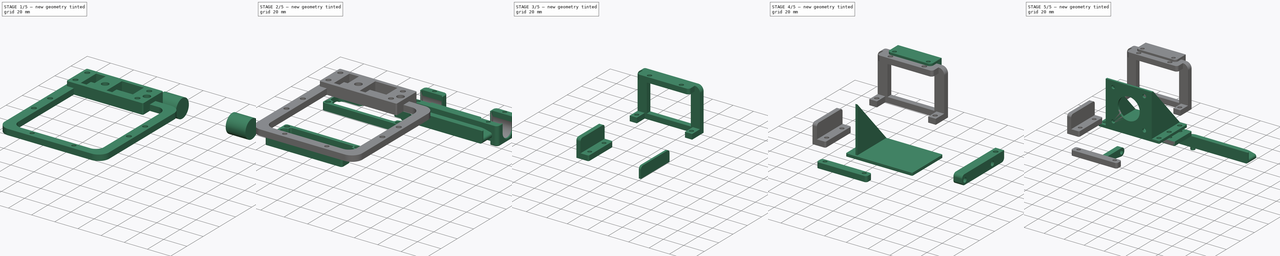
[diagram: build sequence overview — one tinted view per stage of 5, left to right]
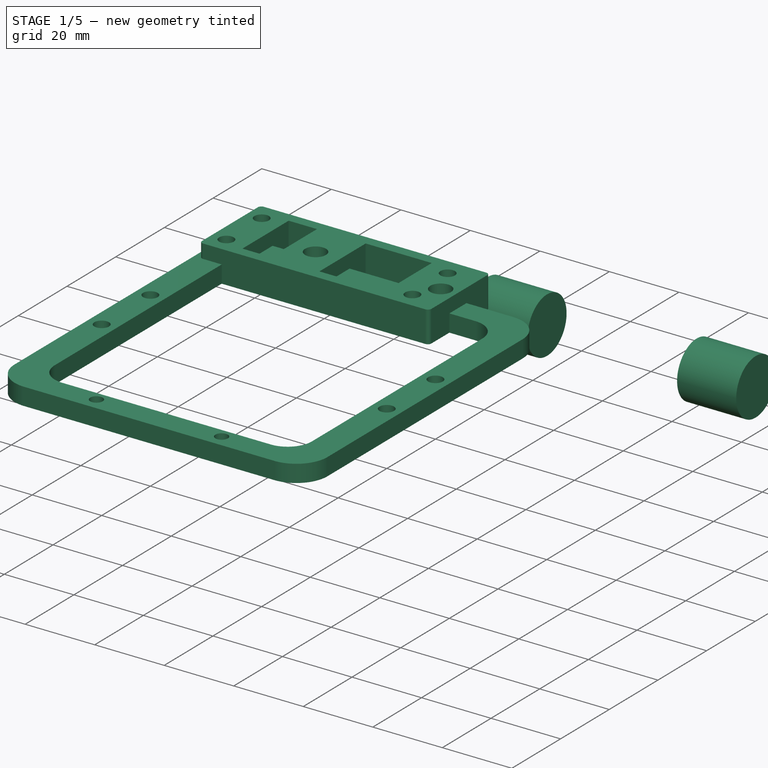
[diagram: stage 1 of 5 — iso view after this stage's code; geometry added in this stage tinted green]
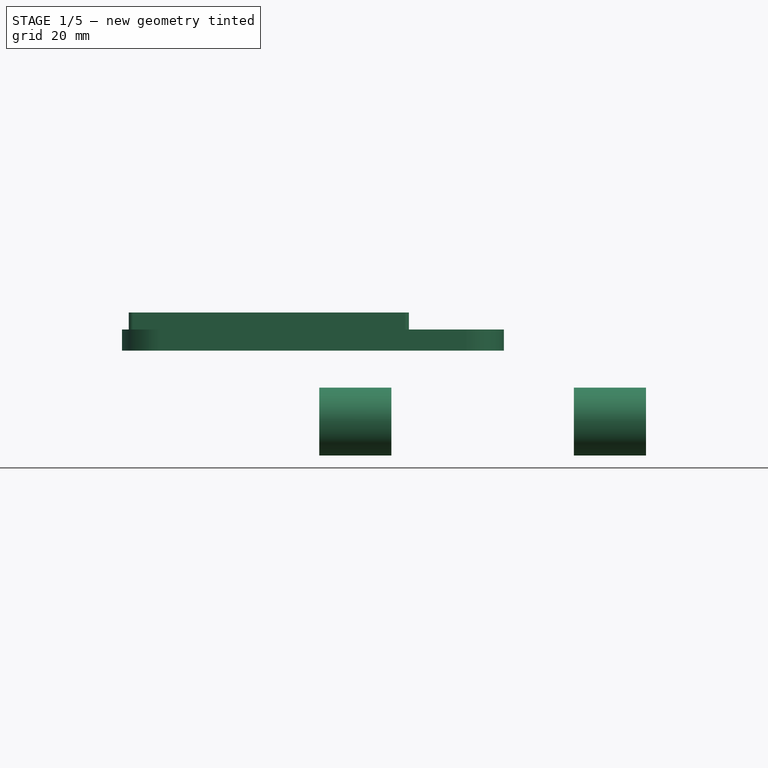
[diagram: stage 1 of 5 — front view after this stage's code; geometry added in this stage tinted green]
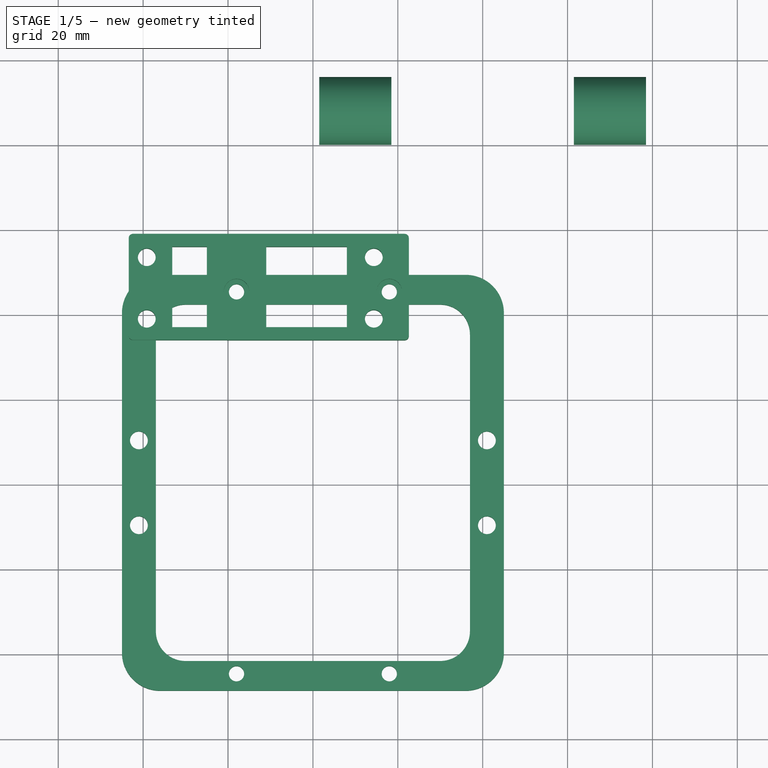
[diagram: stage 1 of 5 — top view after this stage's code; geometry added in this stage tinted green]
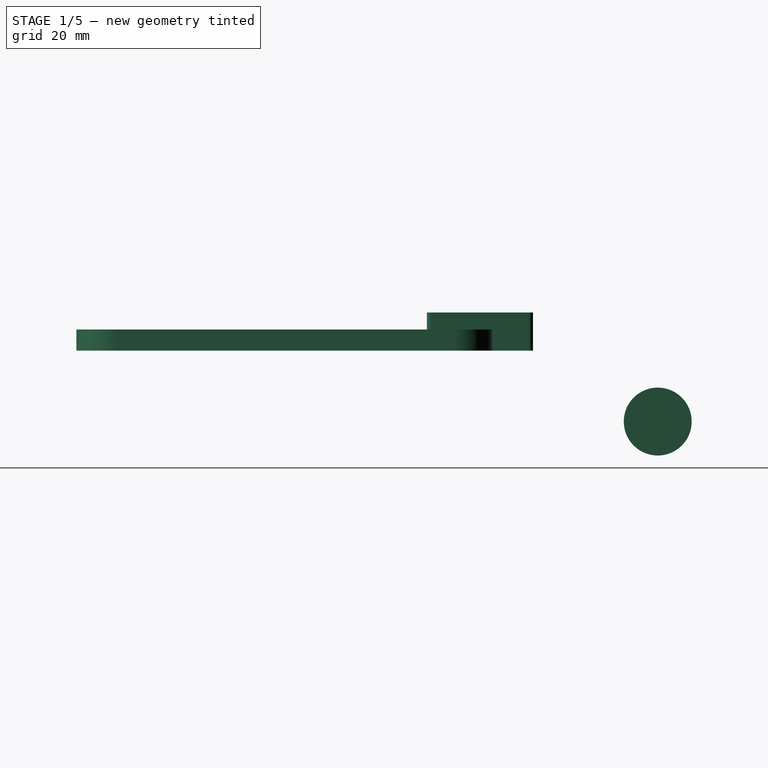
[diagram: stage 1 of 5 — right view after this stage's code; geometry added in this stage tinted green]
FCSTD DOCUMENT  (FreeCAD 0.21R33771 (Git))
Label: 4maxPro_E3Dv6_assembly
License: All rights reserved
LicenseURL: http://en.wikipedia.org/wiki/All_rights_reserved
objects: Part::Compound×16, Sketcher::SketchObject×15, Part::Feature×14, Part::FeaturePython×14, Part::MultiFuse×14, Part::Extrusion×14, Part::Cylinder×9, Part::Box×7, Part::Cut×6, Part::Mirroring×5, Part::Fillet×5, Part::Plane×1, App::DocumentObjectGroup×1, App::Part×1
note: 114 computed .brp shape members not serialized (recipe doc carries the construction recipe); baked Part::Feature solids carry a one-line shape summary decoded from their .brp

FEATURE [Part::Cylinder] Cylinder  label="bearing hole"
  Angle = 360
  AttacherType = Attacher::AttachEngine3D
  FirstAngle = 0
  Height = 17
  Placement = pos=(1.5,88,-10.5) rot=(0,1,0;1.5708rad)
  Radius = 8
  SecondAngle = 0
FEATURE [Part::FeaturePython] Array002  label="bearing hole array"  # Draft array (typed FeaturePython)
  AlwaysSyncPlacement = false
  Angle = 360
  ArrayType = 0
  Axis = (0,0,1)
  Base = -> Cylinder
  Center = (0,0,0)
  Count = 2
  ExpandArray = false
  Fuse = false
  IntervalAxis = (0,0,0)
  IntervalX = (60,0,0)
  IntervalY = (0,100,0)
  IntervalZ = (0,0,100)
  NumberCircles = 3
  NumberPolar = 5
  NumberX = 2
  NumberY = 1
  NumberZ = 1
  PlacementList = 2 placements: [(1.5,88,-10.5),(61.5,88,-10.5)]
  RadialDistance = 50
  ScaleList = (2) [(1,1,1),(1,1,1)]
  Symmetry = 1
  TangentialDistance = 25
FEATURE [Part::Extrusion] Extrude001  label="pair connector extrude"
  Base = -> Sketch002
  Dir = (0,0,1)
  DirMode = 2
  FaceMakerClass = Part::FaceMakerBullseye
  LengthFwd = 5
  LengthRev = 0
  Placement = pos=(0,0,6.2) rot=(0,0,1;0rad)
  Solid = true
  Symmetric = false
FEATURE [Part::Box] Box001  label="mho bottom"
  AttacherType = Attacher::AttachEngine3D
  Height = 2.5
  Length = 61
  Placement = pos=(-30.5,0,0) rot=(0,0,1;0rad)
  Width = 40
  expr: .Placement.Base.x = -Length / 2
FEATURE [Part::Box] Box002  label="mho wall"
  AttacherType = Attacher::AttachEngine3D
  Height = 44.7
  Length = 46
  Placement = pos=(-23,0,0) rot=(0,0,1;0rad)
  Width = 2
  expr: .Placement.Base.x = -Length / 2
FEATURE [Part::Compound] Compound011  label="CoolingSchroud_3_001 compound"
  Links = -> [Part__Feature003]
  Placement = pos=(-36.6,-51.2,-2.6) rot=(0,0,1;0rad)
FEATURE [Part::Box] Box003  label="cs cube"
  AttacherType = Attacher::AttachEngine3D
  Height = 9
  Length = 8
  Placement = pos=(10.2,-26,-2.4) rot=(0,0,1;0rad)
  Width = 55
FEATURE [Part::Box] Box004  label="mho bottom attach"
  AttacherType = Attacher::AttachEngine3D
  Height = 5
  Length = 66
  Placement = pos=(-31,0,0) rot=(0,0,1;0rad)
  Width = 25
  expr: .Placement.Base.x = -Length / 2 + 2 mm
FEATURE [Part::Cylinder] Cylinder007  label="mho insert hole"
  Angle = 360
  AttacherType = Attacher::AttachEngine3D
  FirstAngle = 0
  Height = 10
  Radius = 2.1
  SecondAngle = 0
FEATURE [Part::FeaturePython] PointArray001  label="mho bolt hole pointarray001"  # Draft array (typed FeaturePython)
  Base = -> Cylinder007
  Count = 3
  Placement = pos=(-26.75,0,0) rot=(0,0,1;0rad)
  PointObject = -> Compound009
  expr: .Placement.Base.x = -<<mho bottom>>.Length / 2 + (<<mho bottom>>.Length - <<mho wall>>.Length) / 4
FEATURE [Part::Mirroring] Part__Mirroring005  label="mho bolt hole pointarray (Mirror #4)001"
  Base = (0,0,0)
  Normal = (1,0,0)
  Source = -> PointArray001
FEATURE [Part::MultiFuse] Fusion007  label="mho bottom attach hole fusion"
  Shapes = -> [PointArray001,Part__Mirroring005]
FEATURE [Part::Fillet] Fillet002  label="mho bottom attach fillet"
  Base = -> Box004
  Edges = 4 edges r=1: [Edge1,Edge3,Edge5,Edge7]
FEATURE [Part::Cut] Cut004  label="mho bottom attach cut"
  Base = -> Fillet002
  Tool = -> Fusion007
FEATURE [Part::Compound] Compound017  label="mho bottom attach compound"
  Links = -> [Cut004]
  Placement = pos=(-12.4,33.6,6.2) rot=(0,0,1;0rad)
  expr: .Placement.Base.z = <<pair connector extrude>>.Placement.Base.z
FEATURE [Sketcher::SketchObject] Sketch006  label="mho bottom attach sketch"
  ExternalGeometry = -> [Compound017,Extrude001]
  FullyConstrained = false
  sketch-geometry (22):
    g0: Circle CenterX=-39.15 CenterY=53.1 CenterZ=0 NormalX=0 NormalY=0 NormalZ=1 AngleXU=0 Radius=2.1
    g1: Circle CenterX=14.35 CenterY=53.1 CenterZ=0 NormalX=0 NormalY=0 NormalZ=1 AngleXU=0 Radius=2.1
    g2: Circle CenterX=-39.15 CenterY=38.6 CenterZ=0 NormalX=0 NormalY=0 NormalZ=1 AngleXU=0 Radius=2.1
    g3: Circle CenterX=14.35 CenterY=38.6 CenterZ=0 NormalX=0 NormalY=0 NormalZ=1 AngleXU=0 Radius=2.1
    g4: LineSegment StartX=-42.4 StartY=58.6 StartZ=0 EndX=21.6 EndY=58.6 EndZ=0
    g5: LineSegment StartX=22.6 StartY=57.6 StartZ=0 EndX=22.6 EndY=34.6 EndZ=0
    g6: LineSegment StartX=-42.4 StartY=33.6 StartZ=0 EndX=21.5962 EndY=33.5963 EndZ=0
    g7: LineSegment StartX=-43.4 StartY=34.6 StartZ=0 EndX=-43.4013 EndY=57.5986 EndZ=0
    g8: ArcOfCircle CenterX=-42.4 CenterY=57.5987 CenterZ=0 NormalX=0 NormalY=0 NormalZ=1 AngleXU=0 Radius=1.00135 StartAngle=1.5708 EndAngle=3.14165
    g9: ArcOfCircle CenterX=-42.3999 CenterY=34.6001 CenterZ=0 NormalX=0 NormalY=0 NormalZ=1 AngleXU=0 Radius=1.00006 StartAngle=3.14165 EndAngle=4.71233
    g10: ArcOfCircle CenterX=21.6 CenterY=57.6 CenterZ=0 NormalX=0 NormalY=0 NormalZ=1 AngleXU=0 Radius=1 StartAngle=2.8e-15 EndAngle=1.5708
    g11: ArcOfCircle CenterX=21.5963 CenterY=34.6 CenterZ=0 NormalX=0 NormalY=0 NormalZ=1 AngleXU=0 Radius=1.00375 StartAngle=4.71233 EndAngle=6.28319
    g12: Circle CenterX=18 CenterY=45 CenterZ=0 NormalX=0 NormalY=0 NormalZ=1 AngleXU=0 Radius=3
    g13: Circle CenterX=-18 CenterY=45 CenterZ=0 NormalX=0 NormalY=0 NormalZ=1 AngleXU=0 Radius=3
    g14: LineSegment StartX=-11 StartY=55.6 StartZ=0 EndX=8 EndY=55.6 EndZ=0
    g15: LineSegment StartX=8 StartY=55.6 StartZ=0 EndX=8 EndY=36.5963 EndZ=0
    g16: LineSegment StartX=8 StartY=36.5963 StartZ=0 EndX=-11 EndY=36.5963 EndZ=0
    g17: LineSegment StartX=-11 StartY=36.5963 StartZ=0 EndX=-11 EndY=55.6 EndZ=0
    g18: LineSegment StartX=-33.15 StartY=55.6 StartZ=0 EndX=-25 EndY=55.6 EndZ=0
    g19: LineSegment StartX=-25 StartY=55.6 StartZ=0 EndX=-25 EndY=36.6 EndZ=0
    g20: LineSegment StartX=-25 StartY=36.6 StartZ=0 EndX=-33.15 EndY=36.6 EndZ=0
    g21: LineSegment StartX=-33.15 StartY=36.6 StartZ=0 EndX=-33.15 EndY=55.6 EndZ=0
  constraints (46):
    c: Coincident(g0,g-10)
    c: Coincident(g1,g-9)
    c: Coincident(g2,g-7)
    c: Coincident(g3,g-8)
    c: Coincident(g4,g-4)
    c: Coincident(g4,g-4)
    c: Coincident(g5,g-5)
    c: Coincident(g5,g-5)
    c: Coincident(g6,g-6)
    c: Coincident(g7,g-3)
    c: Tangent(g9,g6) = -1.5708
    c: Tangent(g9,g7) = 1.5708
    c: Tangent(g8,g7) = 1.5708
    c: Tangent(g8,g4) = 1.5708
    c: Tangent(g10,g4) = 1.5708
    c: Tangent(g10,g5) = 1.5708
    c: Tangent(g11,g5) = 1.5708
    c: Tangent(g11,g6) = -1.5708
    c: Radius(g12) = 3
    c: Equal(g13,g12)
    c: Coincident(g14,g15)
    c: Coincident(g15,g16)
    c: Coincident(g16,g17)
    c: Coincident(g17,g14)
    c: Horizontal(g14)
    c: Horizontal(g16)
    c: Vertical(g15)
    c: Vertical(g17)
    c: DistanceY(g14,g4) = 3
    c: DistanceY(g6,g15) = 3
    c: DistanceX(g13,g14) = 7
    c: DistanceX(g14,g12) = 10
    c: Coincident(g18,g19)
    c: Coincident(g19,g20)
    c: Coincident(g20,g21)
    c: Coincident(g21,g18)
    c: Horizontal(g18)
    c: Horizontal(g20)
    c: Vertical(g19)
    c: Vertical(g21)
    c: DistanceY(g18,g4) = 3
    c: DistanceY(g6,g20) = 3
    c: DistanceX(g2,g20) = 6
    c: DistanceX(g19,g13) = 7
    c: Coincident(g13,g-13)
    c: Coincident(g12,g-14)
FEATURE [Part::Extrusion] Extrude005  label="mho bottom attach extrude"
  Base = -> Sketch006
  Dir = (0,0,1)
  DirMode = 2
  FaceMakerClass = Part::FaceMakerBullseye
  LengthFwd = 9
  LengthRev = 0
  Placement = pos=(0,0,6.2) rot=(0,0,1;0rad)
  Solid = true
  Symmetric = false
  expr: .Placement.Base.z = <<pair connector extrude>>.Placement.Base.z
  expr: LengthFwd = <<cs cube>>.Height
FEATURE [Part::MultiFuse] Fusion008  label="pair connector fusion"
  Shapes = -> [Extrude005,Extrude001]
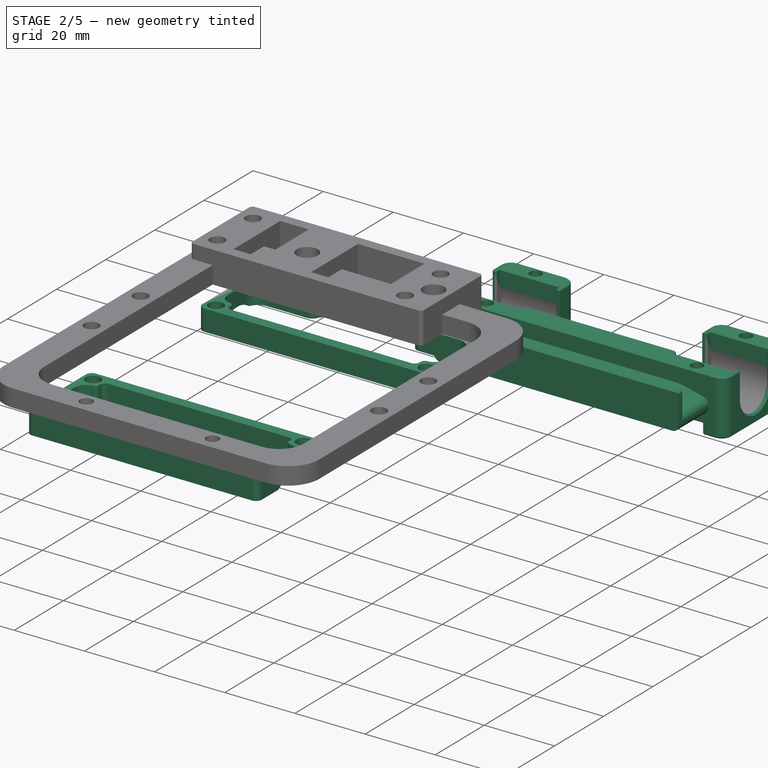
[diagram: stage 2 of 5 — iso view after this stage's code; geometry added in this stage tinted green]
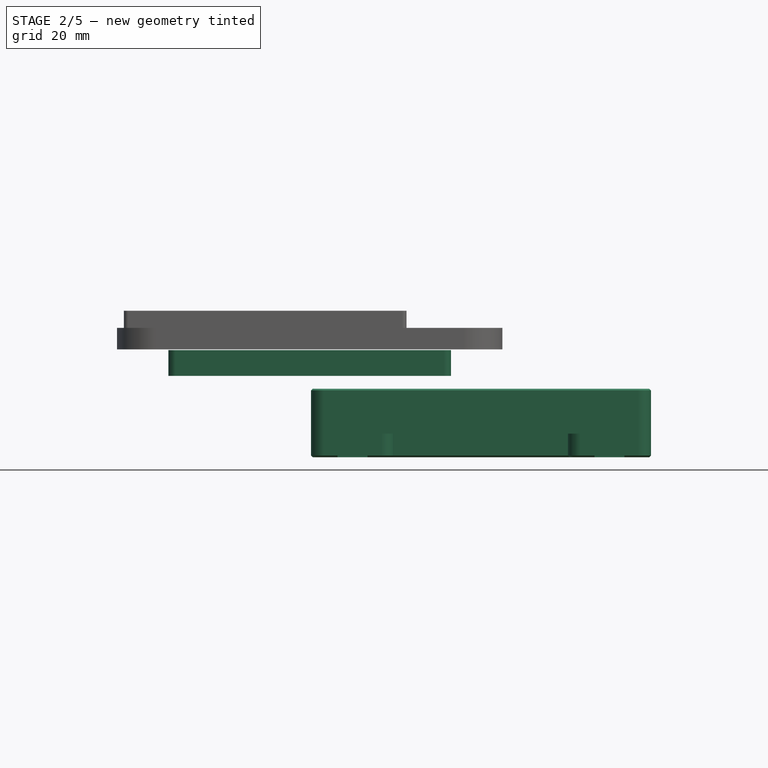
[diagram: stage 2 of 5 — front view after this stage's code; geometry added in this stage tinted green]
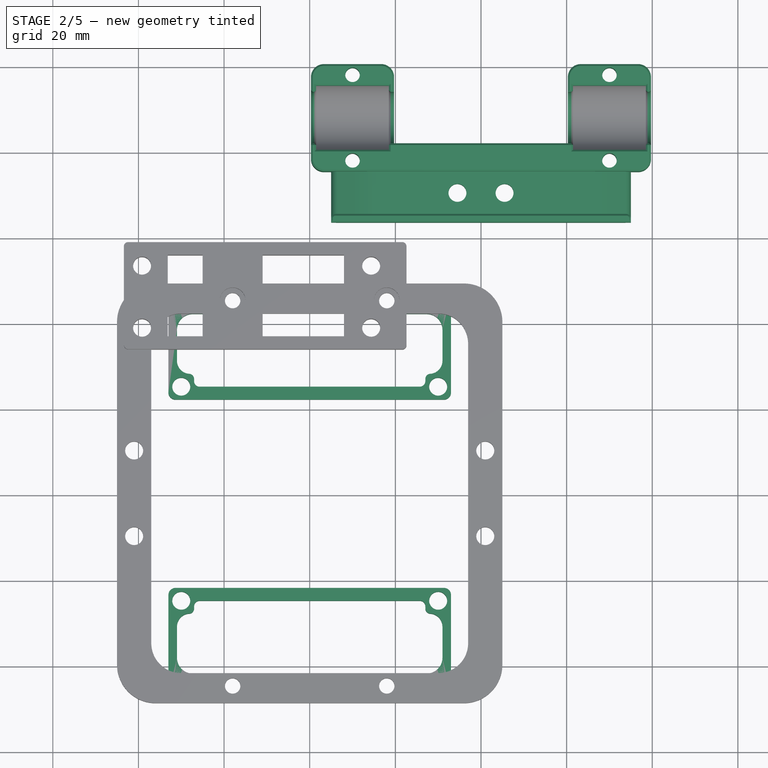
[diagram: stage 2 of 5 — top view after this stage's code; geometry added in this stage tinted green]
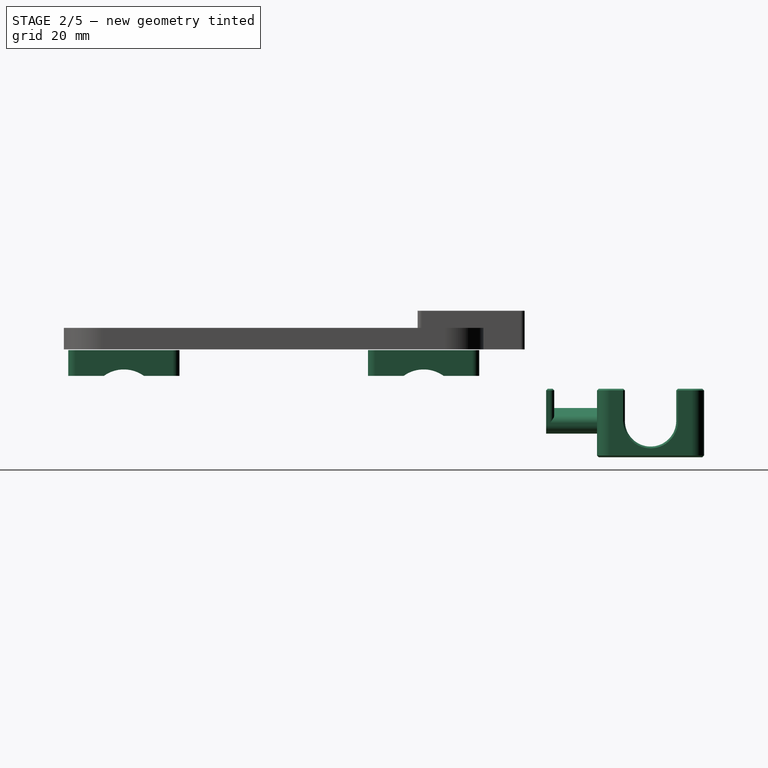
[diagram: stage 2 of 5 — right view after this stage's code; geometry added in this stage tinted green]
FEATURE [Part::Feature] Part__Feature005_child13966  label="belt upper"
  shape: bbox 100 x 7 x 2 mm, 6 faces, 0 solids (baked)
FEATURE [Part::Feature] Part__Feature005_child13967  label="axis one"
  shape: bbox 100 x 8 x 8 mm, 3 faces, 0 solids (baked)
FEATURE [Part::Feature] Part__Feature005_child13968  label="axis two"
  shape: bbox 100 x 8 x 8 mm, 3 faces, 0 solids (baked)
FEATURE [Part::Feature] Part__Feature005_child13969  label="belt lower"
  shape: bbox 100 x 7 x 2 mm, 6 faces, 0 solids (baked)
FEATURE [Part::Feature] Part__Feature005_child13970  label="motor"
  shape: bbox 42.3 x 62 x 42.3 mm, 264 faces, 0 solids (baked)
FEATURE [Part::Feature] Part__Feature005_child13971  label="small thingy"
  shape: bbox 19.4 x 25 x 16 mm, 108 faces, 0 solids (baked)
FEATURE [Part::Feature] Part__Feature005_child13972  label="small thingy001"
  shape: bbox 19.4 x 25 x 16 mm, 108 faces, 0 solids (baked)
FEATURE [Part::Feature] Part__Feature005_child13973  label="big thingy"
  shape: bbox 79.4 x 36.9 x 16 mm, 244 faces, 0 solids (baked)
FEATURE [Part::Cylinder] Cylinder002  label="insert hole002"
  Angle = 360
  AttacherType = Attacher::AttachEngine3D
  FirstAngle = 0
  Height = 30
  Placement = pos=(34.5,70.5,-25) rot=(0,0,1;0rad)
  Radius = 2.1
  SecondAngle = 0
FEATURE [Part::FeaturePython] Array  label="insert hole array"  # Draft array (typed FeaturePython)
  AlwaysSyncPlacement = false
  Angle = 360
  ArrayType = 0
  Axis = (0,0,1)
  Base = -> Cylinder002
  Center = (0,0,0)
  Count = 2
  ExpandArray = false
  Fuse = false
  IntervalAxis = (0,0,0)
  IntervalX = (11,0,0)
  IntervalY = (0,100,0)
  IntervalZ = (0,0,100)
  NumberCircles = 3
  NumberPolar = 5
  NumberX = 2
  NumberY = 1
  NumberZ = 1
  PlacementList = 2 placements: [(34.5,70.5,-25),(45.5,70.5,-25)]
  RadialDistance = 50
  ScaleList = (2) [(1,1,1),(1,1,1)]
  Symmetry = 1
  TangentialDistance = 25
FEATURE [Part::Cylinder] Cylinder004  label="bolt hole"
  Angle = 360
  AttacherType = Attacher::AttachEngine3D
  FirstAngle = 0
  Height = 30
  Radius = 1.7
  SecondAngle = 0
FEATURE [Part::Feature] Shell
  shape: bbox 86.46 x 37.82 x 16 mm, 163 faces, 0 solids (baked)
FEATURE [Part::Feature] Shell_solid  label="Shell (Solid)"
  shape: bbox 86.46 x 37.82 x 16 mm, 163 faces (baked)
FEATURE [Part::Box] Box  label="Cube"
  AttacherType = Attacher::AttachEngine3D
  Height = 6
  Length = 7
  Placement = pos=(-3.5,-3,0) rot=(0,0,1;0rad)
  Width = 6
  expr: .Placement.Base.x = -Length / 2
  expr: .Placement.Base.y = -Width / 2
FEATURE [Part::MultiFuse] Fusion001  label="bolt hole fusion"
  Placement = pos=(10,78,-21) rot=(0,0,1;0rad)
  Shapes = -> [Box,Cylinder004]
FEATURE [Part::FeaturePython] Array001  label="bolt hole array"  # Draft array (typed FeaturePython)
  AlwaysSyncPlacement = false
  Angle = 360
  ArrayType = 0
  Axis = (0,0,1)
  Base = -> Fusion001
  Center = (0,0,0)
  Count = 4
  ExpandArray = false
  Fuse = false
  IntervalAxis = (0,0,0)
  IntervalX = (60,0,0)
  IntervalY = (0,20,0)
  IntervalZ = (0,0,100)
  NumberCircles = 3
  NumberPolar = 5
  NumberX = 2
  NumberY = 2
  NumberZ = 1
  PlacementList = 4 placements: [(10,78,-21),(10,98,-21),(70,78,-21),(70,98,-21)]
  RadialDistance = 50
  ScaleList = (4) [(1,1,1),(1,1,1),(1,1,1),(1,1,1)]
  Symmetry = 1
  TangentialDistance = 25
FEATURE [Part::MultiFuse] Fusion  label="extract fusion"
  Shapes = -> [Array002,Array001,Array]
FEATURE [Part::Cut] Cut  label="big thingy cut"
  Base = -> Shell_solid
  Tool = -> Fusion
FEATURE [Sketcher::SketchObject] Sketch  label="plate sketch"
  FullyConstrained = false
  Support = -> [Cut]
  sketch-geometry (16):
    g0: Circle CenterX=10 CenterY=28 CenterZ=0 NormalX=0 NormalY=0 NormalZ=1 AngleXU=0 Radius=2.1
    g1: Circle CenterX=10 CenterY=8 CenterZ=0 NormalX=0 NormalY=0 NormalZ=1 AngleXU=0 Radius=2.1
    g2: Circle CenterX=70 CenterY=8 CenterZ=0 NormalX=0 NormalY=0 NormalZ=1 AngleXU=0 Radius=2.1
    g3: Circle CenterX=70 CenterY=28 CenterZ=0 NormalX=0 NormalY=0 NormalZ=1 AngleXU=0 Radius=2.1
    g4: Circle CenterX=70 CenterY=78 CenterZ=0 NormalX=0 NormalY=0 NormalZ=1 AngleXU=0 Radius=2.1
    g5: Circle CenterX=70 CenterY=98 CenterZ=0 NormalX=0 NormalY=0 NormalZ=1 AngleXU=0 Radius=2.1
    g6: Circle CenterX=10 CenterY=98 CenterZ=0 NormalX=0 NormalY=0 NormalZ=1 AngleXU=0 Radius=2.1
    g7: Circle CenterX=10 CenterY=78 CenterZ=0 NormalX=0 NormalY=0 NormalZ=1 AngleXU=0 Radius=2.1
    g8: LineSegment StartX=2.64294 StartY=33.2753 StartZ=0 EndX=2.64294 EndY=3.72976 EndZ=0
    g9: LineSegment StartX=2.64294 StartY=3.72976 StartZ=0 EndX=77.9866 EndY=3.72976 EndZ=0
    g10: LineSegment StartX=2.64294 StartY=33.2753 StartZ=0 EndX=16.6884 EndY=33.2753 EndZ=0
    g11: LineSegment StartX=16.6884 StartY=33.2753 StartZ=0 EndX=16.6884 EndY=7.89323 EndZ=0
    g12: LineSegment StartX=17.19 StartY=7.7929 StartZ=0 EndX=61.5334 EndY=7.7929 EndZ=0
    g13: LineSegment StartX=61.5334 StartY=7.7929 StartZ=0 EndX=61.5334 EndY=32.9242 EndZ=0
    g14: LineSegment StartX=61.5334 StartY=32.9242 StartZ=0 EndX=77.9866 EndY=32.9242 EndZ=0
    g15: LineSegment StartX=77.9866 StartY=32.9242 StartZ=0 EndX=77.9866 EndY=3.72976 EndZ=0
  constraints (25):
    c: Radius(g1) = 2.1
    c: Equal(g1,g0)
    c: Equal(g0,g3)
    c: Equal(g3,g2)
    c: Equal(g7,g6)
    c: Equal(g6,g5)
    c: Equal(g5,g4)
    c: Equal(g4,g3)
    c: Vertical(g8)
    c: Coincident(g9,g8)
    c: Horizontal(g9)
    c: Coincident(g10,g8)
    c: Horizontal(g10)
    c: Coincident(g11,g10)
    c: Vertical(g11)
    c: Horizontal(g12)
    c: Coincident(g13,g12)
    c: Vertical(g13)
    c: Coincident(g14,g13)
    c: Horizontal(g14)
    c: Coincident(g15,g14)
    c: Vertical(g15)
    c: Coincident(g9,g15)
    c: DistanceY(g1,g0) = 20
    c: DistanceX(g0,g3) = 60
FEATURE [Sketcher::SketchObject] Sketch001  label="bearing connector sketch"
  FullyConstrained = false
  sketch-geometry (21):
    g0: Circle CenterX=30 CenterY=-10 CenterZ=0 NormalX=0 NormalY=0 NormalZ=1 AngleXU=0 Radius=2.1
    g1: Circle CenterX=30 CenterY=10 CenterZ=0 NormalX=0 NormalY=0 NormalZ=1 AngleXU=0 Radius=2.1
    g2: LineSegment StartX=33 StartY=11.3267 StartZ=0 EndX=33 EndY=-11.3267 EndZ=0
    g3: ArcOfCircle CenterX=31.3267 CenterY=11.3267 CenterZ=0 NormalX=0 NormalY=0 NormalZ=1 AngleXU=0 Radius=1.67327 StartAngle=-9e-16 EndAngle=1.5708
    g4: ArcOfCircle CenterX=31.3267 CenterY=-11.3267 CenterZ=0 NormalX=0 NormalY=0 NormalZ=1 AngleXU=0 Radius=1.67327 StartAngle=4.71239 EndAngle=6.28319
    g5: ArcOfCircle CenterX=25.72 CenterY=8.72003 CenterZ=0 NormalX=0 NormalY=0 NormalZ=1 AngleXU=0 Radius=1.27997 StartAngle=4e-16 EndAngle=1.5708
    g6: LineSegment StartX=27 StartY=8.21682 StartZ=0 EndX=27 EndY=8.72003 EndZ=0
    g7: LineSegment StartX=31 StartY=3.9721 StartZ=0 EndX=31 EndY=-3.3271 EndZ=0
    g8: ArcOfCircle CenterX=27.3271 CenterY=-3.3271 CenterZ=0 NormalX=0 NormalY=0 NormalZ=1 AngleXU=0 Radius=3.67291 StartAngle=4.71481 EndAngle=6.28319
    g9: ArcOfCircle CenterX=27.9668 CenterY=3.9721 CenterZ=0 NormalX=0 NormalY=0 NormalZ=1 AngleXU=0 Radius=3.03324 StartAngle=0 EndAngle=1.51145
    g10: ArcOfCircle CenterX=28.219 CenterY=8.21682 CenterZ=0 NormalX=0 NormalY=0 NormalZ=1 AngleXU=0 Radius=1.21897 StartAngle=3.14159 EndAngle=4.65304
    g11: Circle CenterX=18 CenterY=-10 CenterZ=0 NormalX=0 NormalY=0 NormalZ=1 AngleXU=0 Radius=2.1
    g12: LineSegment StartX=0 StartY=13 StartZ=0 EndX=31.3267 EndY=13 EndZ=0
    g13: LineSegment StartX=0 StartY=-13 StartZ=0 EndX=31.3267 EndY=-13 EndZ=0
    g14: LineSegment StartX=0 StartY=10 StartZ=0 EndX=25.72 EndY=10 EndZ=0
    g15: LineSegment StartX=0 StartY=13 StartZ=0 EndX=0 EndY=10 EndZ=0
    g16: LineSegment StartX=15.9933 StartY=-7 StartZ=0 EndX=27.336 EndY=-7 EndZ=0
    g17: LineSegment StartX=0 StartY=-10 StartZ=0 EndX=11.3576 EndY=-10 EndZ=0
    g18: LineSegment StartX=0 StartY=-10 StartZ=0 EndX=0 EndY=-13 EndZ=0
    g19: ArcOfCircle CenterX=11.3576 CenterY=-7.10336 CenterZ=0 NormalX=0 NormalY=0 NormalZ=1 AngleXU=0 Radius=2.89664 StartAngle=4.71239 EndAngle=5.86112
    g20: ArcOfCircle CenterX=15.9933 CenterY=-9.18507 CenterZ=0 NormalX=0 NormalY=0 NormalZ=1 AngleXU=0 Radius=2.18507 StartAngle=1.5708 EndAngle=2.71952
  constraints (49):
    c: Symmetric(g1,g0,g-1)
    c: Equal(g0,g1)
    c: Vertical(g2)
    c: Tangent(g2,g3) = 1.5708
    c: Tangent(g2,g4) = 1.5708
    c: Equal(g3,g4)
    c: DistanceY(g14,g12) = 3
    c: DistanceY(g13,g16) = 6
    c: Vertical(g6)
    c: Tangent(g6,g5) = -1.5708
    c: Vertical(g7)
    c: Tangent(g7,g8) = 1.5708
    c: Tangent(g7,g9) = 1.5708
    c: Tangent(g6,g10) = 1.5708
    c: DistanceX(g7,g2) = 2
    c: DistanceX(g-1,g1) = 30
    c: Horizontal(g13)
    c: Horizontal(g14)
    c: Radius(g0) = 2.1
    c: Coincident(g15,g12)
    c: PointOnObject(g15,g-2)
    c: Vertical(g15)
    c: Coincident(g14,g15)
    c: DistanceY(g0,g1) = 20
    c: DistanceY(g11,g0) = 0
    c: Equal(g11,g0)
    c: DistanceY(g13,g11) = 3
    c: DistanceX(g0,g2) = 3
    c: DistanceY(g1,g3) = 3
    c: Tangent(g13,g4) = -1.5708
    c: Tangent(g12,g3) = 1.5708
    c: Horizontal(g12)
    c: Tangent(g14,g5) = 1.5708
    c: DistanceX(g5,g2) = 6
    c: Tangent(g10,g9) = 1.5708
    c: DistanceY(g9,g1) = 3
    c: Coincident(g8,g16) = -1.5708
    c: Horizontal(g16)
    c: PointOnObject(g17,g-2)
    c: Horizontal(g17)
    c: Coincident(g18,g17)
    c: Coincident(g18,g13)
    c: Vertical(g18)
    c: DistanceY(g18,g18) = 3
    c: Tangent(g19,g17) = -1.5708
    c: Tangent(g20,g16) = 1.5708
    c: Tangent(g20,g19) = 1.5708
    c: DistanceX(g13,g11) = 18
    c: DistanceX(g19,g11) = 4
FEATURE [Part::Extrusion] Extrude  label="bearing connector extruder"
  Base = -> Sketch001
  Dir = (0,0,1)
  DirMode = 2
  FaceMakerClass = Part::FaceMakerBullseye
  LengthFwd = 6
  LengthRev = 0
  Solid = true
  Symmetric = false
FEATURE [Part::Mirroring] Part__Mirroring  label="bearing connector extruder (Mirror #1)"
  Base = (0,0,0)
  Normal = (1,0,0)
  Source = -> Extrude
FEATURE [Part::MultiFuse] Fusion002  label="bearing connector fusion"
  Shapes = -> [Part__Mirroring,Extrude]
FEATURE [Part::Plane] Plane
  AttacherType = Attacher::AttachEngine3D
  Length = 100
  Placement = pos=(0,75.5,-40.1) rot=(1,0,0;1.5708rad)
  Width = 100
FEATURE [Part::FeaturePython] Slice  # WARN: FeaturePython — macro-defined, semantics opaque (R4)
  Base = -> Cut
  Mode = 1
  Tolerance = 0
  Tools = -> [Plane]
FEATURE [Part::Feature] Part__Mirroring002  label="Other side slice (Mirror #2)001"
  Placement = pos=(0,120.9,0) rot=(0,0,1;0rad)
  shape: bbox 86.46 x 26.62 x 16 mm, 171 faces (baked)
FEATURE [Part::Compound] Compound  label="bearing hole compound"
  Links = -> [Array002]
  Placement = pos=(-40,-88,4) rot=(0,0,1;0rad)
FEATURE [Part::Cut] Cut001  label="bearing connector cut"
  Base = -> Fusion002
  Tool = -> Compound
FEATURE [Part::Compound] Compound005  label="bearing connector compound"
  Links = -> [Cut001]
  Placement = pos=(0,-35,0) rot=(0,0,1;0rad)
FEATURE [Part::Mirroring] Part__Mirroring003  label="bearing connector compound (Mirror #3)"
  Base = (0,0,0)
  Normal = (0,1,0)
  Source = -> Compound005
FEATURE [Part::Feature] Part__Feature001  label="ASSY_Hotend_Extruder_001"
  Placement = pos=(48.837,-7,-30.5951) rot=(0,0.508464,0.858225;0rad)
  shape: bbox 67.96 x 47.21 x 129.8 mm, 3842 faces, 0 solids (baked)
FEATURE [Part::Feature] Part__Feature002  label="30mm_001"
  shape: bbox 37.84 x 37.84 x 18.96 mm, 675 faces, 0 solids (baked)
FEATURE [Part::Feature] Part__Feature003  label="CoolingSchroud_3_001"
  shape: bbox 36.25 x 46.02 x 66.33 mm, 113 faces, 0 solids (baked)
FEATURE [Part::MultiFuse] Fusion003  label="bearing connector compound fusion"
  Shapes = -> [Compound005,Part__Mirroring003]
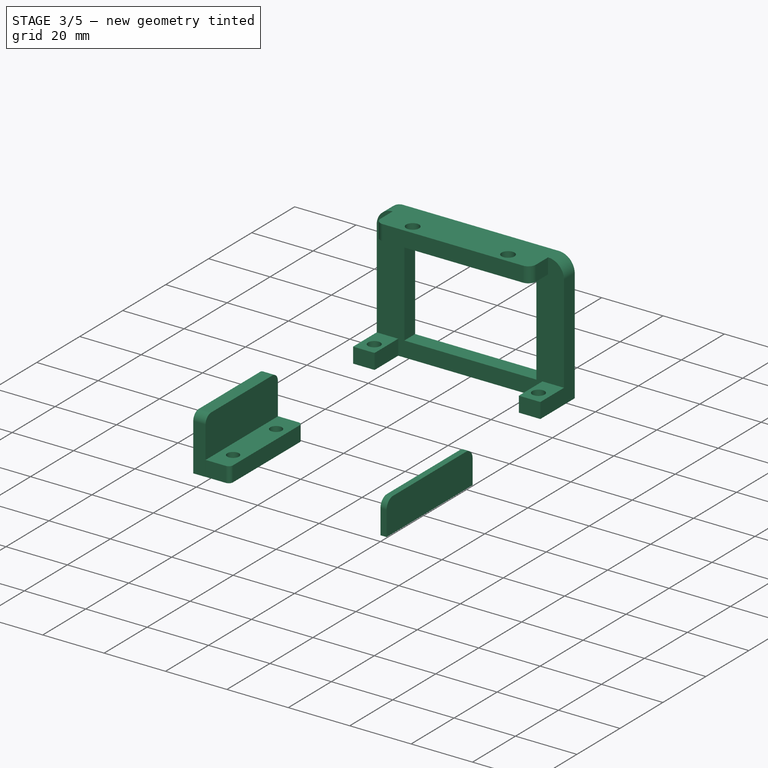
[diagram: stage 3 of 5 — iso view after this stage's code; geometry added in this stage tinted green]
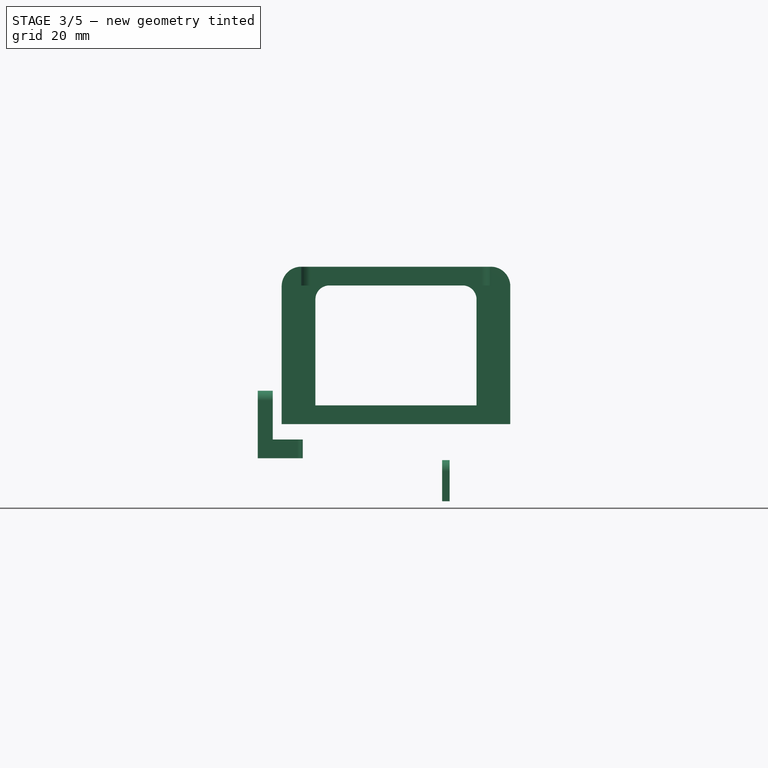
[diagram: stage 3 of 5 — front view after this stage's code; geometry added in this stage tinted green]
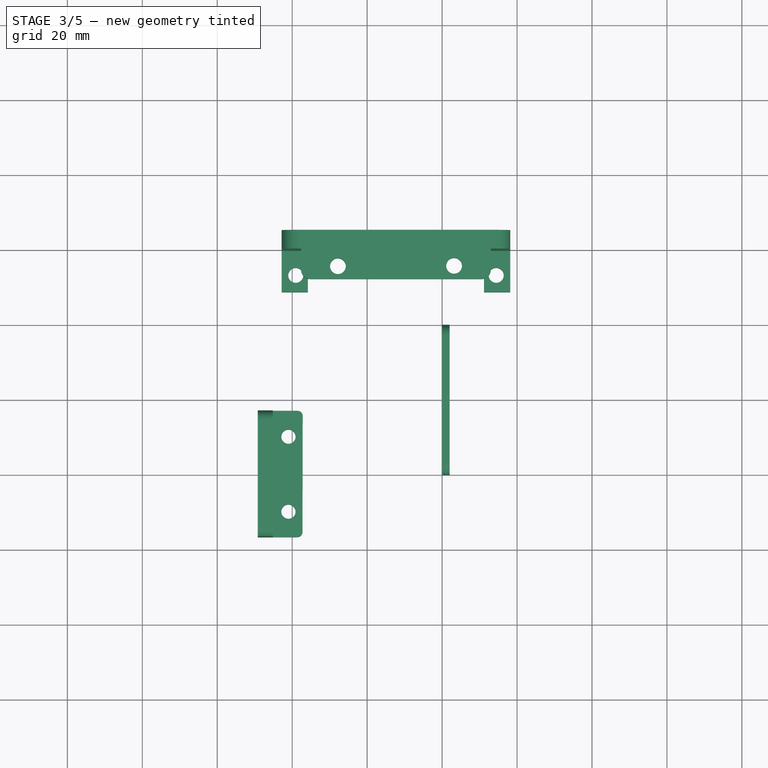
[diagram: stage 3 of 5 — top view after this stage's code; geometry added in this stage tinted green]
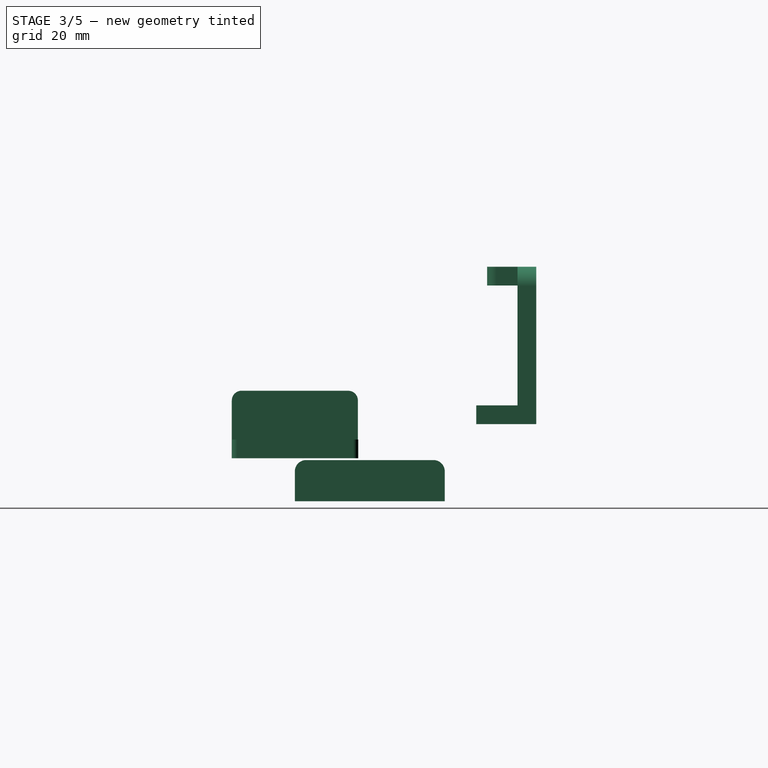
[diagram: stage 3 of 5 — right view after this stage's code; geometry added in this stage tinted green]
FEATURE [Part::FeaturePython] Slice_child0  label="Other side slice"  # WARN: FeaturePython — macro-defined, semantics opaque (R4)
  Base = -> Slice
  FilterType = 1
  Invert = false
  OverrideMaxVal = 0
  WindowFrom = 80
  WindowTo = 100
  items = 0
FEATURE [App::DocumentObjectGroup] GrExplode_Slice  label="Other side exploded Slice"
  Group = -> [Slice_child0,Slice_child1]
FEATURE [App::Part] Part  label="big thingy part"
  Group = -> [Cut]
  Origin = -> Origin
FEATURE [Part::Mirroring] Part__Mirroring001  label="Other side slice (Mirror #2)"
  Base = (0,0,0)
  Normal = (0,1,0)
  Source = -> Slice_child0
FEATURE [Part::Compound] Compound001  label="big thing compound"
  Links = -> [Cut]
  Placement = pos=(-40,-87.7,3) rot=(0,0,1;0rad)
FEATURE [Part::Compound] Compound002  label="other side compound"
  Links = -> [Part__Mirroring001]
  Placement = pos=(-40,18.3,3) rot=(0,0,1;0rad)
FEATURE [Sketcher::SketchObject] Sketch002  label="pair connector sketch"
  FullyConstrained = false
  sketch-geometry (33):
    g0: LineSegment StartX=-36 StartY=-49 StartZ=0 EndX=0 EndY=-49 EndZ=0
    g1: LineSegment StartX=0 StartY=-49 StartZ=0 EndX=36 EndY=-49 EndZ=0
    g2: LineSegment StartX=-30 StartY=-42 StartZ=0 EndX=0 EndY=-42 EndZ=0
    g3: LineSegment StartX=0 StartY=-42 StartZ=0 EndX=30 EndY=-42 EndZ=0
    g4: LineSegment StartX=-37 StartY=35 StartZ=0 EndX=-37 EndY=0 EndZ=0
    g5: LineSegment StartX=-37 StartY=0 StartZ=0 EndX=-37 EndY=-35 EndZ=0
    g6: LineSegment StartX=-45 StartY=40 StartZ=0 EndX=-45 EndY=0 EndZ=0
    g7: LineSegment StartX=-45 StartY=0 StartZ=0 EndX=-45 EndY=-40 EndZ=0
    g8: LineSegment StartX=37 StartY=-35 StartZ=0 EndX=37 EndY=0 EndZ=0
    g9: LineSegment StartX=37 StartY=0 StartZ=0 EndX=37 EndY=35 EndZ=0
    g10: LineSegment StartX=30 StartY=42 StartZ=0 EndX=0 EndY=42 EndZ=0
    g11: LineSegment StartX=0 StartY=42 StartZ=0 EndX=-30 EndY=42 EndZ=0
    g12: ArcOfCircle CenterX=-30 CenterY=-35 CenterZ=0 NormalX=0 NormalY=0 NormalZ=1 AngleXU=0 Radius=7 StartAngle=3.14159 EndAngle=4.71239
    g13: ArcOfCircle CenterX=-30 CenterY=35 CenterZ=0 NormalX=0 NormalY=0 NormalZ=1 AngleXU=0 Radius=7 StartAngle=1.5708 EndAngle=3.14159
    g14: ArcOfCircle CenterX=30 CenterY=35 CenterZ=0 NormalX=0 NormalY=0 NormalZ=1 AngleXU=0 Radius=7 StartAngle=1e-16 EndAngle=1.5708
    g15: ArcOfCircle CenterX=30 CenterY=-35 CenterZ=0 NormalX=0 NormalY=0 NormalZ=1 AngleXU=0 Radius=7 StartAngle=4.71239 EndAngle=6.28319
    g16: LineSegment StartX=36 StartY=49 StartZ=0 EndX=0 EndY=49 EndZ=0
    g17: LineSegment StartX=0 StartY=49 StartZ=0 EndX=-36 EndY=49 EndZ=0
    g18: LineSegment StartX=45 StartY=-40 StartZ=0 EndX=45 EndY=0 EndZ=0
    g19: LineSegment StartX=45 StartY=0 StartZ=0 EndX=45 EndY=40 EndZ=0
    g20: ArcOfCircle CenterX=-36 CenterY=-40 CenterZ=0 NormalX=0 NormalY=0 NormalZ=1 AngleXU=0 Radius=9 StartAngle=3.14159 EndAngle=4.71239
    g21: ArcOfCircle CenterX=-36 CenterY=40 CenterZ=0 NormalX=0 NormalY=0 NormalZ=1 AngleXU=0 Radius=9 StartAngle=1.5708 EndAngle=3.14159
    g22: ArcOfCircle CenterX=36 CenterY=40 CenterZ=0 NormalX=0 NormalY=0 NormalZ=1 AngleXU=0 Radius=9 StartAngle=2e-16 EndAngle=1.5708
    g23: ArcOfCircle CenterX=36 CenterY=-40 CenterZ=0 NormalX=0 NormalY=0 NormalZ=1 AngleXU=0 Radius=9 StartAngle=4.71239 EndAngle=6.28319
    g24: Circle CenterX=-18 CenterY=45 CenterZ=0 NormalX=0 NormalY=0 NormalZ=1 AngleXU=0 Radius=1.8
    g25: Circle CenterX=18 CenterY=45 CenterZ=0 NormalX=0 NormalY=0 NormalZ=1 AngleXU=0 Radius=1.8
    g26: Circle CenterX=-18 CenterY=-45 CenterZ=0 NormalX=0 NormalY=0 NormalZ=1 AngleXU=0 Radius=1.8
    g27: Circle CenterX=18 CenterY=-45 CenterZ=0 NormalX=0 NormalY=0 NormalZ=1 AngleXU=0 Radius=1.8
    g28: Circle CenterX=-41 CenterY=10 CenterZ=0 NormalX=0 NormalY=0 NormalZ=1 AngleXU=0 Radius=2.1
    g29: Circle CenterX=-41 CenterY=-10 CenterZ=0 NormalX=0 NormalY=0 NormalZ=1 AngleXU=0 Radius=2.1
    g30: Circle CenterX=-39.1779 CenterY=38.628 CenterZ=0 NormalX=0 NormalY=0 NormalZ=1 AngleXU=0 Radius=2.45882
    g31: Circle CenterX=41 CenterY=-10 CenterZ=0 NormalX=0 NormalY=0 NormalZ=1 AngleXU=0 Radius=2.1
    g32: Circle CenterX=41 CenterY=10 CenterZ=0 NormalX=0 NormalY=0 NormalZ=1 AngleXU=0 Radius=2.1
  constraints (78):
    c: Coincident(g0,g1)
    c: Horizontal(g0)
    c: Horizontal(g1)
    c: Coincident(g2,g3)
    c: Coincident(g4,g5)
    c: Coincident(g6,g7)
    c: Coincident(g8,g9)
    c: Vertical(g8)
    c: Vertical(g9)
    c: Coincident(g10,g11)
    c: Horizontal(g10)
    c: Horizontal(g11)
    c: PointOnObject(g10,g-2)
    c: Symmetric(g2,g10,g-1)
    c: Symmetric(g4,g8,g-2)
    c: PointOnObject(g4,g-1)
    c: Vertical(g5)
    c: Vertical(g4)
    c: Horizontal(g3)
    c: Horizontal(g2)
    c: Tangent(g2,g12) = -1.5708
    c: Tangent(g5,g12) = -1.5708
    c: Tangent(g4,g13) = -1.5708
    c: Tangent(g11,g13) = -1.5708
    c: Tangent(g10,g14) = -1.5708
    c: Tangent(g9,g14) = -1.5708
    c: Tangent(g8,g15) = -1.5708
    c: Tangent(g3,g15) = -1.5708
    c: Equal(g15,g12)
    c: Equal(g12,g13)
    c: Equal(g13,g14)
    c: Coincident(g16,g17)
    c: Coincident(g18,g19)
    c: Vertical(g18)
    c: Vertical(g19)
    c: PointOnObject(g18,g-1)
    c: Symmetric(g6,g18,g-2)
    c: PointOnObject(g0,g-2)
    c: Symmetric(g16,g0,g-1)
    c: Horizontal(g17)
    c: Horizontal(g16)
    c: Vertical(g7)
    c: Vertical(g6)
    c: DistanceY(g10,g16) = 7
    c: Tangent(g7,g20) = -1.5708
    c: Tangent(g0,g20) = -1.5708
    c: Tangent(g6,g21) = -1.5708
    c: Tangent(g17,g21) = -1.5708
    c: Tangent(g16,g22) = -1.5708
    c: Tangent(g19,g22) = -1.5708
    c: Tangent(g18,g23) = -1.5708
    c: Tangent(g1,g23) = -1.5708
    c: Equal(g20,g23)
    c: Equal(g23,g22)
    c: Equal(g22,g21)
    c: DistanceY(g4,g4) = 35
    c: DistanceY(g6,g6) = 40
    c: Symmetric(g26,g27,g-2)
    c: Symmetric(g26,g24,g-1)
    c: Symmetric(g24,g25,g-2)
    c: Radius(g26) = 1.8
    c: DistanceX(g26,g27) = 36
    c: DistanceY(g26,g24) = 90
    c: Equal(g24,g25)
    c: Equal(g25,g27)
    c: Equal(g27,g26)
    c: DistanceX(g6,g4) = 8
    c: DistanceY(g-1,g10) = 42
    c: Equal(g28,g29)
    c: Symmetric(g29,g28,g-1)
    c: DistanceX(g29,g-1) = 41
    c: Radius(g28) = 2.1
    c: DistanceY(g29,g28) = 20
    c: DistanceX(g4,g-1) = 37
    c: Equal(g32,g31)
    c: Radius(g32) = 2.1
    c: Symmetric(g32,g31,g-1)
    c: Symmetric(g31,g29,g-2)
FEATURE [Part::Compound] Compound004  label="the pair compound"
  Links = -> [Compound002,Compound001]
  Placement = pos=(0,34.7,0) rot=(0,0,1;0rad)
FEATURE [Part::Compound] Compound007  label="assembly compound"
  Links = -> [Fusion003,Compound004,Fusion008]
FEATURE [Part::Box] Box006  label="top cube"
  AttacherType = Attacher::AttachEngine3D
  Height = 3
  Length = 11
  Placement = pos=(0,0,-3) rot=(0,0,1;0rad)
  Width = 40
  expr: .Placement.Base.z = -Height
FEATURE [Part::Box] Box007  label="stepper cube"
  AttacherType = Attacher::AttachEngine3D
  Height = 11
  Length = 2
  Width = 40
  expr: Width = <<top cube>>.Width
FEATURE [Part::Fillet] Fillet004
  Base = -> Box007
  Edges = 2 edges r=3: [Edge10,Edge12]
FEATURE [Sketcher::SketchObject] Sketch010  label="pcb below attachment sketch"
  FullyConstrained = false
  sketch-geometry (10):
    g0: LineSegment StartX=11.1883 StartY=48.406 StartZ=0 EndX=11.1883 EndY=59.406 EndZ=0
    g1: LineSegment StartX=11.1883 StartY=59.406 StartZ=0 EndX=-35.8117 EndY=59.406 EndZ=0
    g2: LineSegment StartX=-35.8117 StartY=59.406 StartZ=0 EndX=-35.8117 EndY=48.406 EndZ=0
    g3: LineSegment StartX=-35.8117 StartY=48.406 StartZ=0 EndX=-42.8117 EndY=48.406 EndZ=0
    g4: LineSegment StartX=-42.8117 StartY=48.406 StartZ=0 EndX=-42.8117 EndY=64.406 EndZ=0
    g5: LineSegment StartX=-42.8117 StartY=64.406 StartZ=0 EndX=18.1883 EndY=64.406 EndZ=0
    g6: LineSegment StartX=18.1883 StartY=64.406 StartZ=0 EndX=18.1883 EndY=48.406 EndZ=0
    g7: LineSegment StartX=18.1883 StartY=48.406 StartZ=0 EndX=11.1883 EndY=48.406 EndZ=0
    g8: Circle CenterX=-39.0617 CenterY=52.906 CenterZ=0 NormalX=0 NormalY=0 NormalZ=1 AngleXU=0 Radius=2
    g9: Circle CenterX=14.4383 CenterY=52.906 CenterZ=0 NormalX=0 NormalY=0 NormalZ=1 AngleXU=0 Radius=2
  constraints (29):
    c: Vertical(g0)
    c: Coincident(g1,g0)
    c: Horizontal(g1)
    c: Coincident(g2,g1)
    c: Vertical(g2)
    c: Coincident(g3,g2)
    c: Horizontal(g3)
    c: Coincident(g4,g3)
    c: Vertical(g4)
    c: Coincident(g5,g4)
    c: Horizontal(g5)
    c: Vertical(g6)
    c: Coincident(g7,g6)
    c: Coincident(g7,g0)
    c: Horizontal(g7)
    c: Coincident(g5,g6)
    c: DistanceX(g7,g7) = 7
    c: Equal(g3,g7)
    c: Equal(g2,g0)
    c: DistanceX(g1,g1) = 47
    c: DistanceX(g8,g9) = 53.5
    c: DistanceY(g2,g2) = 11
    c: DistanceY(g1,g4) = 5
    c: DistanceX(g9,g6) = 3.75
    c: Equal(g8,g9)
    c: Radius(g8) = 2
    c: DistanceX(g3,g8) = 3.75
    c: DistanceY(g3,g8) = 4.5
    c: DistanceY(g6,g9) = 4.5
FEATURE [Part::Extrusion] Extrude009
  Base = -> Sketch010
  Dir = (0,0,1)
  DirMode = 2
  FaceMakerClass = Part::FaceMakerBullseye
  LengthFwd = 5
  LengthRev = 0
  Placement = pos=(0,0,20.6) rot=(0,0,1;0rad)
  Solid = true
  Symmetric = false
FEATURE [Sketcher::SketchObject] Sketch011  label="pcb wall sketch"
  ExternalGeometry = -> [Extrude009]
  FullyConstrained = false
  MapMode = 5
  Placement = pos=(0,64.406,20.6) rot=(0,0.707107,0.707107;3.14159rad)
  Support = -> [Extrude009]
  sketch-geometry (12):
    g0: LineSegment StartX=-18.1883 StartY=0 StartZ=0 EndX=-18.1883 EndY=36.8105 EndZ=0
    g1: LineSegment StartX=42.8117 StartY=0 StartZ=0 EndX=42.8117 EndY=36.8105 EndZ=0
    g2: LineSegment StartX=-12.9987 StartY=42 StartZ=0 EndX=37.6222 EndY=42 EndZ=0
    g3: ArcOfCircle CenterX=-12.9987 CenterY=36.8105 CenterZ=0 NormalX=0 NormalY=0 NormalZ=1 AngleXU=0 Radius=5.18954 StartAngle=1.5708 EndAngle=3.14159
    g4: ArcOfCircle CenterX=37.6222 CenterY=36.8105 CenterZ=0 NormalX=0 NormalY=0 NormalZ=1 AngleXU=0 Radius=5.18954 StartAngle=0 EndAngle=1.5708
    g5: LineSegment StartX=-9.18827 StartY=5 StartZ=0 EndX=-9.18827 EndY=33.2761 EndZ=0
    g6: LineSegment StartX=-5.46432 StartY=37 StartZ=0 EndX=30.0878 EndY=37 EndZ=0
    g7: LineSegment StartX=33.8117 StartY=33.2761 StartZ=0 EndX=33.8117 EndY=5 EndZ=0
    g8: LineSegment StartX=-9.18827 StartY=5 StartZ=0 EndX=33.8117 EndY=5 EndZ=0
    g9: ArcOfCircle CenterX=-5.46432 CenterY=33.2761 CenterZ=0 NormalX=0 NormalY=0 NormalZ=1 AngleXU=0 Radius=3.72395 StartAngle=1.5708 EndAngle=3.14159
    g10: ArcOfCircle CenterX=30.0878 CenterY=33.2761 CenterZ=0 NormalX=0 NormalY=0 NormalZ=1 AngleXU=0 Radius=3.72395 StartAngle=6e-16 EndAngle=1.5708
    g11: LineSegment StartX=-18.1883 StartY=0 StartZ=0 EndX=42.8117 EndY=0 EndZ=0
  constraints (29):
    c: Coincident(g0,g-5)
    c: Vertical(g0)
    c: Coincident(g1,g-5)
    c: Vertical(g1)
    c: Horizontal(g2)
    c: Tangent(g2,g3) = 1.5708
    c: Tangent(g0,g3) = 1.5708
    c: Tangent(g1,g4) = -1.5708
    c: Tangent(g2,g4) = 1.5708
    c: PointOnObject(g5,g-6)
    c: Vertical(g5)
    c: Horizontal(g6)
    c: PointOnObject(g7,g-6)
    c: Vertical(g7)
    c: Coincident(g8,g5)
    c: Coincident(g8,g7)
    c: DistanceX(g7,g-6) = 9
    c: DistanceX(g-6,g5) = 9
    c: Tangent(g5,g9) = 1.5708
    c: Tangent(g6,g9) = 1.5708
    c: Tangent(g7,g10) = 1.5708
    c: Tangent(g6,g10) = 1.5708
    c: Equal(g10,g9)
    c: Equal(g3,g4)
    c: DistanceY(g0,g2) = 42
    c: DistanceY(g6,g2) = 5
    c: Coincident(g11,g0)
    c: PointOnObject(g11,g1)
    c: Horizontal(g11)
FEATURE [Part::Extrusion] Extrude010
  Base = -> Sketch011
  Dir = (0,1,-2e-16)
  DirMode = 2
  FaceMakerClass = Part::FaceMakerBullseye
  LengthFwd = 5
  LengthRev = 0
  Reversed = true
  Solid = true
  Symmetric = false
FEATURE [Sketcher::SketchObject] Sketch012  label="pcb top sketch"
  ExternalGeometry = -> [Extrude010]
  FullyConstrained = false
  MapMode = 5
  Placement = pos=(0,1.38e-14,62.6) rot=(0,0,1;0rad)
  Support = -> [Extrude010]
  sketch-geometry (8):
    g0: LineSegment StartX=-37.6222 StartY=64.406 StartZ=0 EndX=-37.6222 EndY=58.7718 EndZ=0
    g1: LineSegment StartX=12.9987 StartY=64.406 StartZ=0 EndX=12.9987 EndY=58.7718 EndZ=0
    g2: LineSegment StartX=-35.1498 StartY=56.2994 StartZ=0 EndX=10.5264 EndY=56.2994 EndZ=0
    g3: ArcOfCircle CenterX=-35.1498 CenterY=58.7718 CenterZ=0 NormalX=0 NormalY=0 NormalZ=1 AngleXU=0 Radius=2.47236 StartAngle=3.14159 EndAngle=4.71239
    g4: ArcOfCircle CenterX=10.5264 CenterY=58.7718 CenterZ=0 NormalX=0 NormalY=0 NormalZ=1 AngleXU=0 Radius=2.47236 StartAngle=4.71239 EndAngle=6.28319
    g5: LineSegment StartX=-37.6222 StartY=64.406 StartZ=0 EndX=12.9987 EndY=64.406 EndZ=0
    g6: Circle CenterX=-27.8013 CenterY=59.6994 CenterZ=0 NormalX=0 NormalY=0 NormalZ=1 AngleXU=0 Radius=2.1
    g7: Circle CenterX=3.19873 CenterY=59.7994 CenterZ=0 NormalX=0 NormalY=0 NormalZ=1 AngleXU=0 Radius=2.1
  constraints (19):
    c: Coincident(g0,g-3)
    c: Vertical(g0)
    c: Coincident(g1,g-4)
    c: Equal(g1,g0)
    c: Vertical(g1)
    c: Tangent(g0,g3) = -1.5708
    c: Tangent(g2,g3) = -1.5708
    c: Tangent(g2,g4) = -1.5708
    c: Tangent(g1,g4) = 1.5708
    c: Horizontal(g2)
    c: Coincident(g5,g0)
    c: Coincident(g5,g1)
    c: Equal(g6,g7)
    c: Radius(g6) = 2.1
    c: DistanceX(g6,g7) = 31
    c: DistanceX(g0,g6) = 9.82091
    c: DistanceX(g7,g1) = 9.8
    c: DistanceY(g2,g6) = 3.4
    c: DistanceY(g2,g7) = 3.5
FEATURE [Part::Extrusion] Extrude011
  Base = -> Sketch012
  Dir = (0,2e-16,1)
  DirMode = 2
  FaceMakerClass = Part::FaceMakerBullseye
  LengthFwd = 5
  LengthRev = 0
  Placement = pos=(0,-5,0) rot=(0,0,1;0rad)
  Reversed = true
  Solid = true
  Symmetric = false
  expr: .Placement.Base.y = -Extrude010.LengthFwd
FEATURE [Part::MultiFuse] Fusion012  label="pcb holder fusion"
  Shapes = -> [Extrude011,Extrude010,Extrude009]
FEATURE [Sketcher::SketchObject] Sketch013
  ExternalGeometry = -> [Compound007]
  FullyConstrained = false
  sketch-geometry (8):
    g0: LineSegment StartX=-37.2007 StartY=15.5366 StartZ=0 EndX=-37.2588 EndY=-15.4145 EndZ=0
    g1: LineSegment StartX=-38.5683 StartY=16.9067 StartZ=0 EndX=-49.2007 EndY=16.9067 EndZ=0
    g2: LineSegment StartX=-38.6264 StartY=-16.7795 StartZ=0 EndX=-49.2007 EndY=-16.7795 EndZ=0
    g3: LineSegment StartX=-49.2007 StartY=16.9067 StartZ=0 EndX=-49.2007 EndY=-16.7795 EndZ=0
    g4: Circle CenterX=-41 CenterY=10 CenterZ=0 NormalX=0 NormalY=0 NormalZ=1 AngleXU=0 Radius=1.9
    g5: Circle CenterX=-41 CenterY=-10 CenterZ=0 NormalX=0 NormalY=0 NormalZ=1 AngleXU=0 Radius=1.9
    g6: ArcOfCircle CenterX=-38.5683 CenterY=15.5391 CenterZ=0 NormalX=0 NormalY=0 NormalZ=1 AngleXU=0 Radius=1.3676 StartAngle=6.28131 EndAngle=7.85398
    g7: ArcOfCircle CenterX=-38.6264 CenterY=-15.4119 CenterZ=0 NormalX=0 NormalY=0 NormalZ=1 AngleXU=0 Radius=1.3676 StartAngle=4.71239 EndAngle=6.28131
  constraints (14):
    c: Horizontal(g2)
    c: Horizontal(g1)
    c: Coincident(g3,g1)
    c: Coincident(g3,g2)
    c: Vertical(g3)
    c: Coincident(g4,g-3)
    c: Coincident(g5,g-4)
    c: Tangent(g1,g6) = -1.5708
    c: Tangent(g0,g6) = 1.5708
    c: Tangent(g0,g7) = 1.5708
    c: Equal(g7,g6)
    c: DistanceX(g1,g0) = 12
    c: Radius(g4) = 1.9
    c: Radius(g5) = 1.9
FEATURE [Part::Extrusion] Extrude012
  Base = -> Sketch013
  Dir = (0,0,1)
  DirMode = 2
  FaceMakerClass = Part::FaceMakerBullseye
  LengthFwd = 5
  LengthRev = 0
  Placement = pos=(0,0,11.5) rot=(0,0,1;0rad)
  Solid = true
  Symmetric = false
FEATURE [Sketcher::SketchObject] Sketch014
  FullyConstrained = false
  MapMode = 5
  Placement = pos=(-49.2007,0,11.5) rot=(0.57735,-0.57735,-0.57735;2.0944rad)
  Support = -> [Extrude012]
  sketch-geometry (6):
    g0: LineSegment StartX=-16.821 StartY=0 StartZ=0 EndX=16.821 EndY=0 EndZ=0
    g1: LineSegment StartX=16.821 StartY=0 StartZ=0 EndX=16.821 EndY=15.4106 EndZ=0
    g2: LineSegment StartX=-16.821 StartY=0 StartZ=0 EndX=-16.821 EndY=15.4106 EndZ=0
    g3: LineSegment StartX=-14.2316 StartY=18 StartZ=0 EndX=14.2316 EndY=18 EndZ=0
    g4: ArcOfCircle CenterX=-14.2316 CenterY=15.4106 CenterZ=0 NormalX=0 NormalY=0 NormalZ=1 AngleXU=0 Radius=2.58945 StartAngle=1.5708 EndAngle=3.14159
    g5: ArcOfCircle CenterX=14.2316 CenterY=15.4106 CenterZ=0 NormalX=0 NormalY=0 NormalZ=1 AngleXU=0 Radius=2.58945 StartAngle=1e-16 EndAngle=1.5708
  constraints (10):
    c: Coincident(g1,g0)
    c: Vertical(g1)
    c: Coincident(g2,g0)
    c: Vertical(g2)
    c: Tangent(g2,g4) = 1.5708
    c: Tangent(g3,g4) = 1.5708
    c: Tangent(g3,g5) = 1.5708
    c: Tangent(g1,g5) = -1.5708
    c: Symmetric(g3,g3,g-2)
    c: DistanceY(g0,g3) = 18
FEATURE [Part::Extrusion] Extrude013
  Base = -> Sketch014
  Dir = (-1,0,0)
  DirMode = 2
  FaceMakerClass = Part::FaceMakerBullseye
  LengthFwd = 4
  LengthRev = 0
  Reversed = true
  Solid = true
  Symmetric = false
FEATURE [Part::MultiFuse] Fusion013  label="stop switch toucher"
  Shapes = -> [Extrude013,Extrude012]
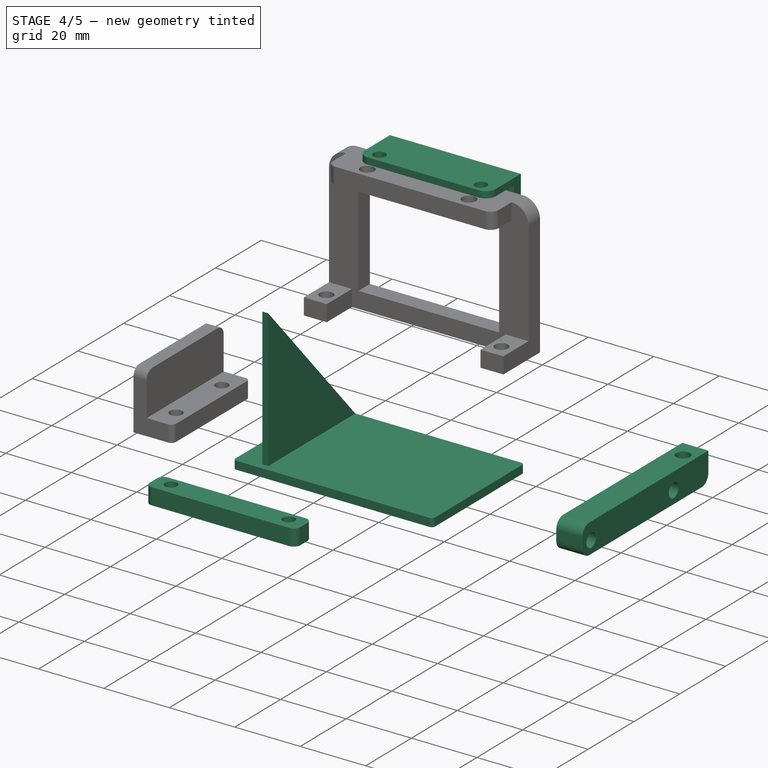
[diagram: stage 4 of 5 — iso view after this stage's code; geometry added in this stage tinted green]
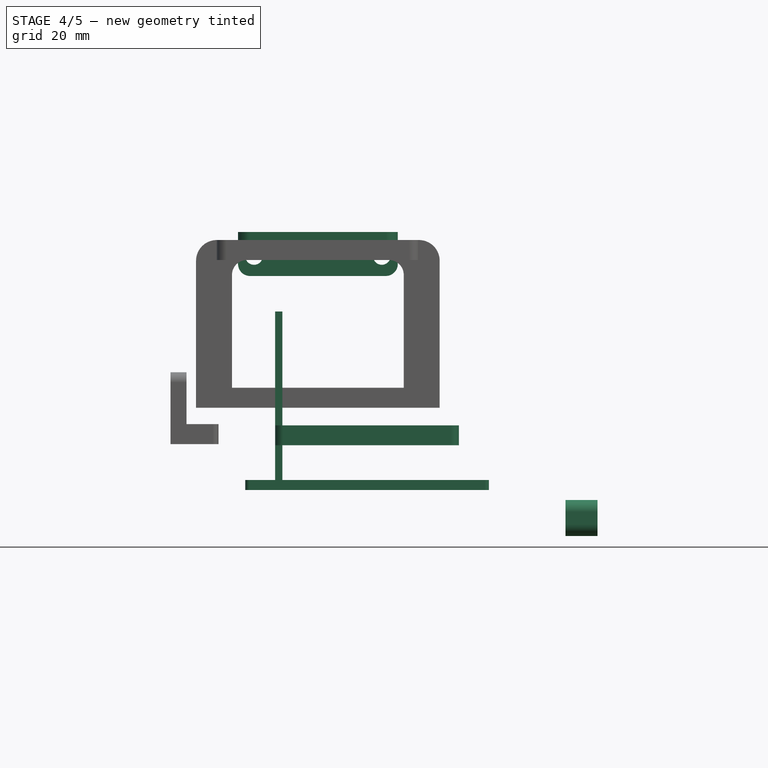
[diagram: stage 4 of 5 — front view after this stage's code; geometry added in this stage tinted green]
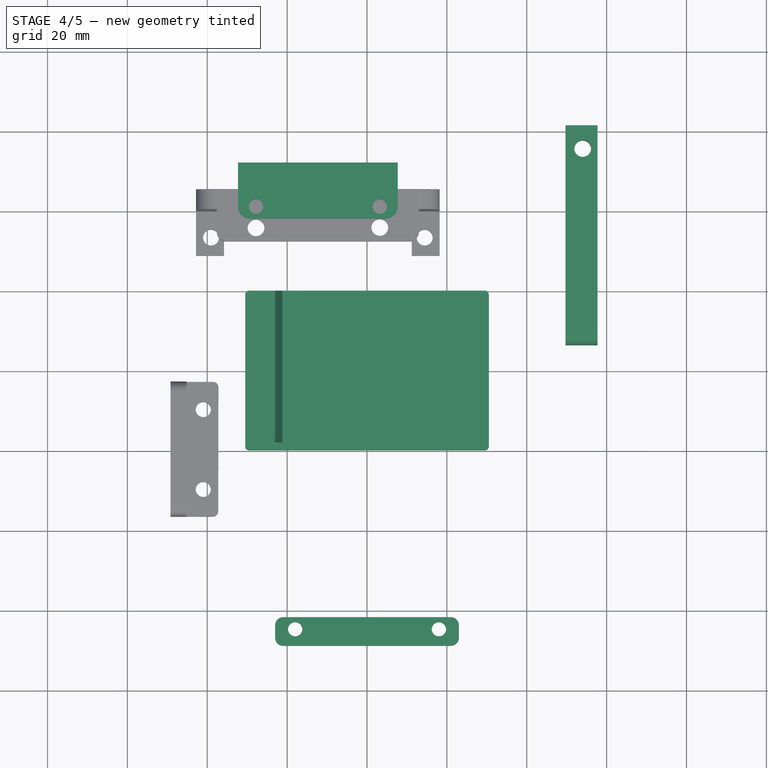
[diagram: stage 4 of 5 — top view after this stage's code; geometry added in this stage tinted green]
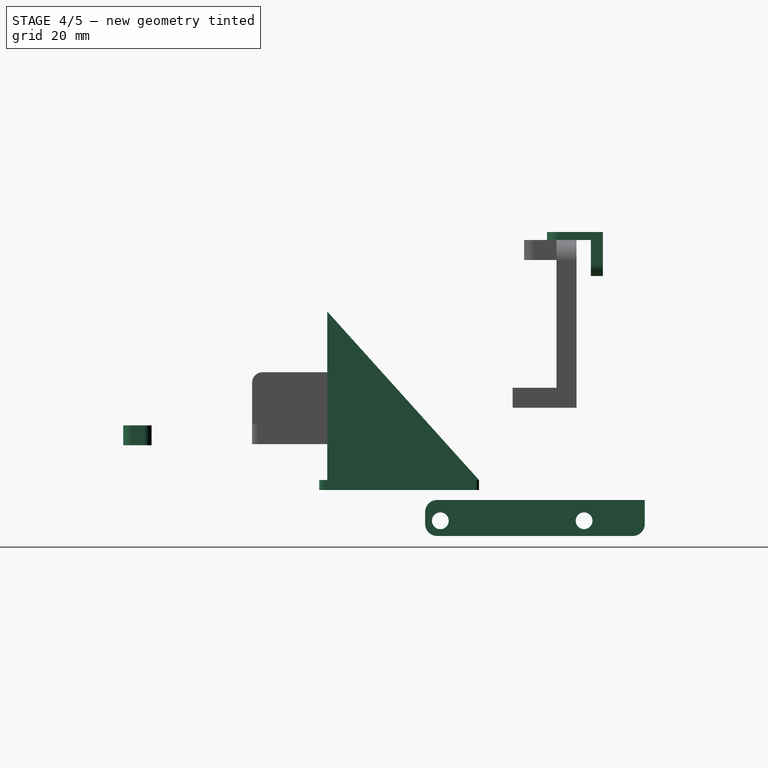
[diagram: stage 4 of 5 — right view after this stage's code; geometry added in this stage tinted green]
FEATURE [Sketcher::SketchObject] Sketch003  label="mho side wall sketch"
  ExternalGeometry = -> [Box002,Box001]
  FullyConstrained = true
  Placement = pos=(0,0,0) rot=(0.57735,0.57735,0.57735;2.0944rad)
  sketch-geometry (3):
    g0: LineSegment StartX=2 StartY=44.7 StartZ=0 EndX=2 EndY=2.5 EndZ=0
    g1: LineSegment StartX=40 StartY=2.5 StartZ=0 EndX=2 EndY=2.5 EndZ=0
    g2: LineSegment StartX=2 StartY=44.7 StartZ=0 EndX=40 EndY=2.5 EndZ=0
  constraints (7):
    c: Coincident(g0,g-5)
    c: PointOnObject(g0,g-5)
    c: Coincident(g1,g-4)
    c: Coincident(g1,g0)
    c: Horizontal(g1)
    c: Coincident(g2,g0)
    c: Coincident(g2,g1)
FEATURE [Part::Extrusion] Extrude002  label="mho side wall extrude"
  Base = -> Sketch003
  Dir = (1,0,0)
  DirMode = 2
  FaceMakerClass = Part::FaceMakerBullseye
  LengthFwd = 1.8
  LengthRev = 0
  Placement = pos=(-23,0,0) rot=(0,0,1;0rad)
  Solid = true
  Symmetric = false
  expr: .Placement.Base.x = -<<mho wall>>.Length / 2
FEATURE [Part::Fillet] Fillet  label="mho bottom fillet"
  Base = -> Box001
  Edges = 4 edges r=1: [Edge1,Edge3,Edge5,Edge7]
FEATURE [Part::Fillet] Fillet001  label="cs cube fillet"
  Base = -> Box003
  Edges = 3 edges r=3: [Edge9,Edge10,Edge11]
FEATURE [Sketcher::SketchObject] Sketch005  label="cs cooling schroud hole sketch"
  FullyConstrained = true
  Placement = pos=(18.2,17.6,-2.4) rot=(0.57735,-0.57735,-0.57735;2.0944rad)
  Support = -> [Box003]
  sketch-geometry (2):
    g0: Circle CenterX=3.8 CenterY=3.8 CenterZ=0 NormalX=0 NormalY=0 NormalZ=1 AngleXU=0 Radius=2.1
    g1: Circle CenterX=39.8 CenterY=3.8 CenterZ=0 NormalX=0 NormalY=0 NormalZ=1 AngleXU=0 Radius=2.1
  constraints (6):
    c: DistanceX(g0,g1) = 36
    c: DistanceY(g0,g1) = 0
    c: Radius(g0) = 2.1
    c: Equal(g0,g1)
    c: DistanceY(g-1,g0) = 3.8
    c: DistanceX(g-1,g0) = 3.8
FEATURE [Part::Extrusion] Extrude004  label="cs cooling schroud hole extrude"
  Base = -> Sketch005
  Dir = (-1,-2e-16,2e-16)
  DirMode = 2
  FaceMakerClass = Part::FaceMakerBullseye
  LengthFwd = 10
  LengthRev = 0
  Solid = true
  Symmetric = false
FEATURE [Part::Cylinder] Cylinder006  label="cs vert hole"
  Angle = 360
  AttacherType = Attacher::AttachEngine3D
  FirstAngle = 0
  Height = 20
  Placement = pos=(14.5,23.2,-10) rot=(0,0,1;0rad)
  Radius = 2.1
  SecondAngle = 0
  expr: .Placement.Base.z = -Height / 2
FEATURE [Part::MultiFuse] Fusion006  label="cs hole fusion"
  Shapes = -> [Extrude004,Cylinder006]
FEATURE [Part::Cut] Cut003  label="cs attachment block"
  Base = -> Fillet001
  Tool = -> Fusion006
FEATURE [Part::Compound] Compound013  label="CoolingSchroud_3_001 compound for assembly"
  Links = -> [Part__Feature003]
  Placement = pos=(68,48.3,-7.7) rot=(0,0,1;0rad)
FEATURE [Part::Compound] Compound014  label="motor compound for assembly"
  Links = -> [Part__Feature005_child13970]
FEATURE [Part::Compound] Compound015  label="30mm_001 compound for assembly"
  Links = -> [Part__Feature002]
  Placement = pos=(53,33.5,19) rot=(0.707107,0.707107,0;3.14159rad)
FEATURE [Part::Compound] Compound016  label="cs attachment block compound for assembly"
  Links = -> [Cut003]
  Placement = pos=(39.5,52.5,-9.1) rot=(0,0,1;0rad)
FEATURE [Sketcher::SketchObject] Sketch009
  ExternalGeometry = -> [Compound007]
  FullyConstrained = false
  sketch-geometry (10):
    g0: Circle CenterX=-18 CenterY=-45 CenterZ=0 NormalX=0 NormalY=0 NormalZ=1 AngleXU=0 Radius=1.8
    g1: Circle CenterX=18 CenterY=-45 CenterZ=0 NormalX=0 NormalY=0 NormalZ=1 AngleXU=0 Radius=1.8
    g2: LineSegment StartX=-21.0025 StartY=-42 StartZ=0 EndX=21.0025 EndY=-42 EndZ=0
    g3: LineSegment StartX=21 StartY=-49.1 StartZ=0 EndX=-21 EndY=-49.1 EndZ=0
    g4: LineSegment StartX=-23 StartY=-47.1 StartZ=0 EndX=-23 EndY=-44.1 EndZ=0
    g5: LineSegment StartX=23 StartY=-47.1 StartZ=0 EndX=23 EndY=-44.1 EndZ=0
    g6: ArcOfCircle CenterX=-21 CenterY=-47.1 CenterZ=0 NormalX=0 NormalY=0 NormalZ=1 AngleXU=0 Radius=2 StartAngle=3.14159 EndAngle=4.71239
    g7: ArcOfCircle CenterX=-21.0025 CenterY=-44 CenterZ=0 NormalX=0 NormalY=0 NormalZ=1 AngleXU=0 Radius=2 StartAngle=1.5708 EndAngle=3.19161
    g8: ArcOfCircle CenterX=21.0025 CenterY=-44 CenterZ=0 NormalX=0 NormalY=0 NormalZ=1 AngleXU=0 Radius=2 StartAngle=6.23316 EndAngle=7.85398
    g9: ArcOfCircle CenterX=21 CenterY=-47.1 CenterZ=0 NormalX=0 NormalY=0 NormalZ=1 AngleXU=0 Radius=2 StartAngle=4.71239 EndAngle=6.28319
  constraints (23):
    c: Coincident(g0,g-3)
    c: Coincident(g1,g-4)
    c: Equal(g1,g0)
    c: Radius(g0) = 1.8
    c: PointOnObject(g2,g-5)
    c: PointOnObject(g2,g-6)
    c: Coincident(g3,g-7)
    c: Coincident(g3,g-7)
    c: Coincident(g4,g-8)
    c: Coincident(g4,g-8)
    c: Coincident(g5,g-9)
    c: Coincident(g5,g-9)
    c: Coincident(g6,g4)
    c: Coincident(g7,g4)
    c: Coincident(g8,g5)
    c: Coincident(g9,g5)
    c: Coincident(g9,g3)
    c: Equal(g6,g7)
    c: Equal(g7,g8)
    c: Equal(g8,g9)
    c: Tangent(g6,g3) = 1.5708
    c: Tangent(g7,g2) = 1.5708
    c: Tangent(g8,g2) = 1.5708
FEATURE [Part::Extrusion] Extrude008
  Base = -> Sketch009
  Dir = (0,0,1)
  DirMode = 2
  FaceMakerClass = Part::FaceMakerBullseye
  LengthFwd = 5
  LengthRev = 0
  Placement = pos=(0,0,11.2) rot=(0,0,1;0rad)
  Solid = true
  Symmetric = false
FEATURE [Part::Cylinder] Cylinder008
  Angle = 360
  AttacherType = Attacher::AttachEngine3D
  FirstAngle = 0
  Height = 10
  Radius = 1.8
  SecondAngle = 0
FEATURE [Part::FeaturePython] Array004  label="stepper hole array"  # Draft array (typed FeaturePython)
  AlwaysSyncPlacement = false
  Angle = 360
  ArrayType = 0
  Axis = (0,0,1)
  Base = -> Cylinder008
  Center = (0,0,0)
  Count = 2
  ExpandArray = false
  Fuse = false
  IntervalAxis = (0,0,0)
  IntervalX = (100,0,0)
  IntervalY = (0,31,0)
  IntervalZ = (0,0,100)
  NumberCircles = 3
  NumberPolar = 5
  NumberX = 1
  NumberY = 2
  NumberZ = 1
  Placement = pos=(0,4.5,8) rot=(0,1,0;1.5708rad)
  PlacementList = 2 placements: [(0,0,0),(0,31,0)]
  RadialDistance = 50
  ScaleList = (2) [(1,1,1),(1,1,1)]
  Symmetry = 1
  TangentialDistance = 25
  expr: .Placement.Base.y = (<<top cube>>.Width - .IntervalY.y) / 2
FEATURE [Part::Cylinder] Cylinder001
  Angle = 360
  AttacherType = Attacher::AttachEngine3D
  FirstAngle = 0
  Height = 10
  Radius = 2.2
  SecondAngle = 0
FEATURE [Part::FeaturePython] Array005  label="pcb hole array"  # Draft array (typed FeaturePython)
  AlwaysSyncPlacement = false
  Angle = 360
  ArrayType = 0
  Axis = (0,0,1)
  Base = -> Cylinder001
  Center = (0,0,0)
  Count = 2
  ExpandArray = false
  Fuse = false
  IntervalAxis = (0,0,0)
  IntervalX = (100,0,0)
  IntervalY = (0,32,0)
  IntervalZ = (0,0,100)
  NumberCircles = 3
  NumberPolar = 5
  NumberX = 1
  NumberY = 2
  NumberZ = 1
  Placement = pos=(6,4,-3) rot=(0,1,0;0rad)
  PlacementList = 2 placements: [(0,0,0),(0,32,0)]
  RadialDistance = 50
  ScaleList = (2) [(1,1,1),(1,1,1)]
  Symmetry = 1
  TangentialDistance = 25
  expr: .Placement.Base.y = (<<top cube>>.Width - .IntervalY.y) / 2
  expr: .Placement.Base.z = -<<top cube>>.Height
FEATURE [Part::Fillet] Fillet003
  Base = -> Box006
  Edges = 2 edges r=3: [Edge5,Edge7]
FEATURE [Part::MultiFuse] Fusion010
  Shapes = -> [Array004,Array005]
FEATURE [Part::MultiFuse] Fusion011
  Shapes = -> [Fillet003,Fillet004]
FEATURE [Part::Cut] Cut005  label="pcb_holder cut"
  Base = -> Fusion011
  Placement = pos=(-32.3,68,64.6) rot=(0.57735,0.57735,-0.57735;2.0944rad)
  Tool = -> Fusion010
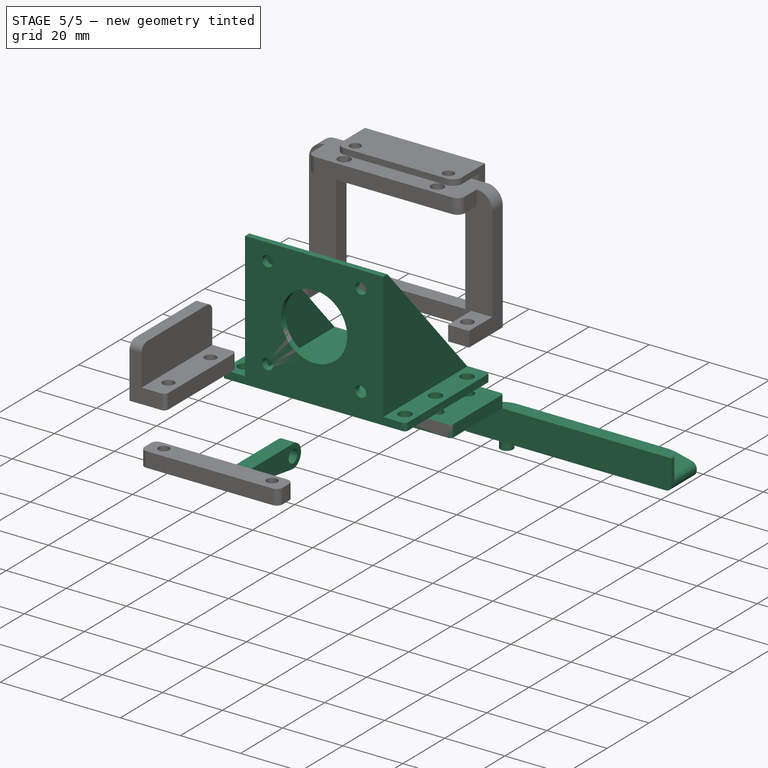
[diagram: stage 5 of 5 — iso view after this stage's code; geometry added in this stage tinted green]
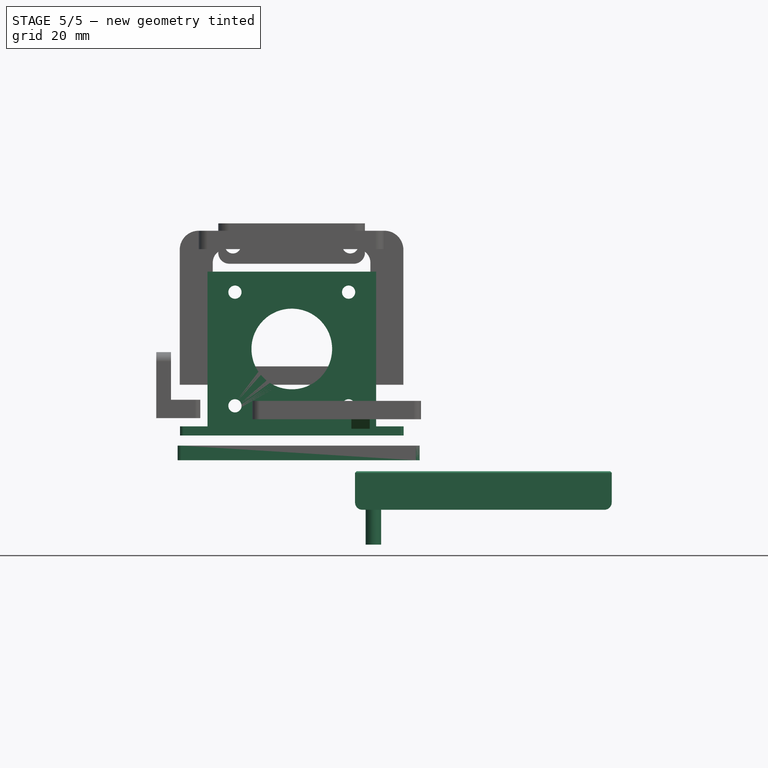
[diagram: stage 5 of 5 — front view after this stage's code; geometry added in this stage tinted green]
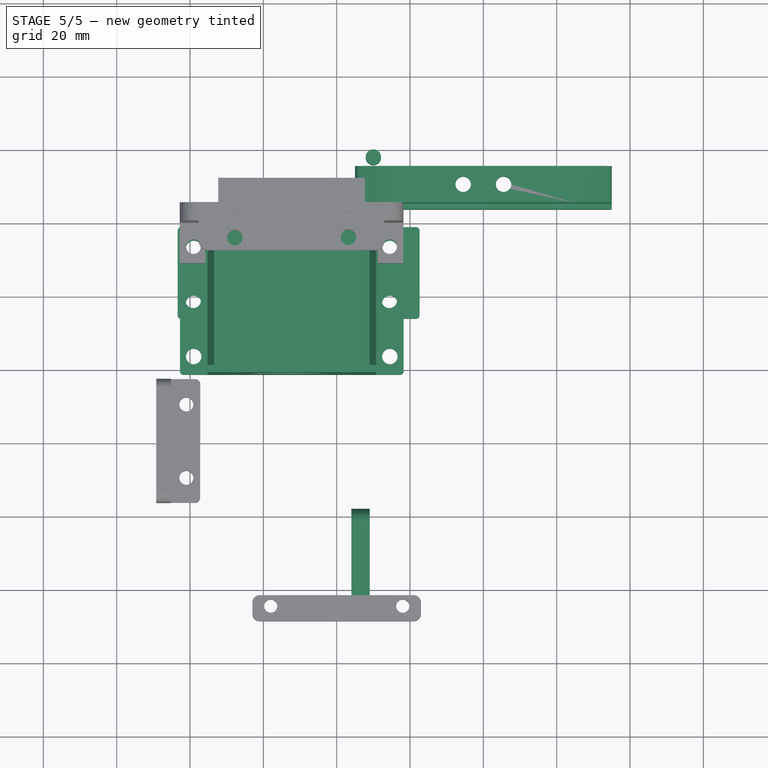
[diagram: stage 5 of 5 — top view after this stage's code; geometry added in this stage tinted green]
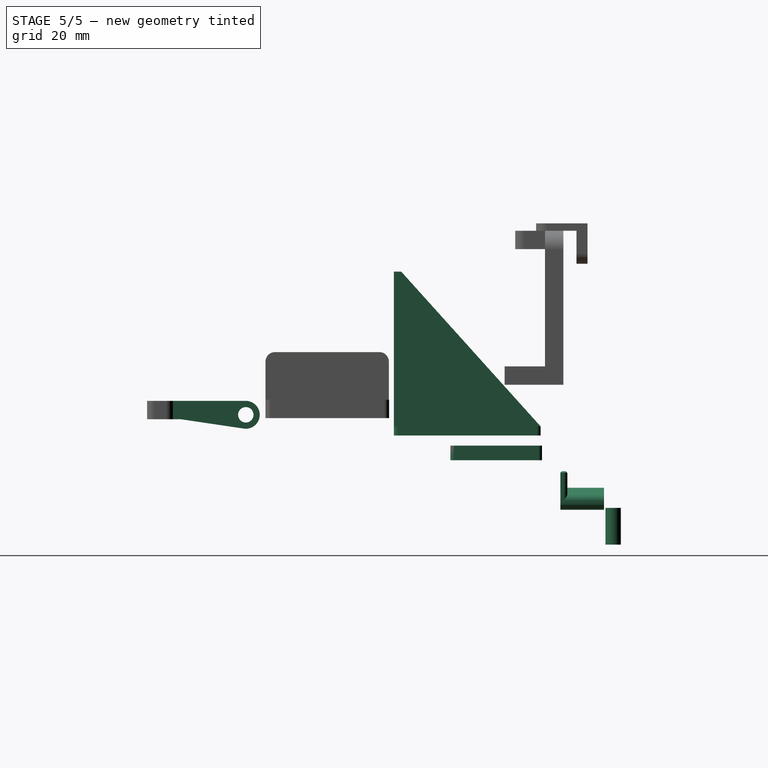
[diagram: stage 5 of 5 — right view after this stage's code; geometry added in this stage tinted green]
FEATURE [Part::Cylinder] Cylinder003  label="insert hole003"
  Angle = 360
  AttacherType = Attacher::AttachEngine3D
  FirstAngle = 0
  Height = 10
  Placement = pos=(10,78,-23) rot=(0,0,1;0rad)
  Radius = 2.1
  SecondAngle = 0
FEATURE [Part::FeaturePython] Slice_child1  label="Slice.1"  # WARN: FeaturePython — macro-defined, semantics opaque (R4)
  Base = -> Slice
  FilterType = 1
  Invert = false
  OverrideMaxVal = 0
  WindowFrom = 80
  WindowTo = 100
  items = 1
FEATURE [Part::FeaturePython] Array003  label="mho side wall array"  # Draft array (typed FeaturePython)
  AlwaysSyncPlacement = false
  Angle = 360
  ArrayType = 0
  Axis = (0,0,1)
  Base = -> Extrude002
  Center = (0,0,0)
  Count = 2
  ExpandArray = false
  Fuse = false
  IntervalAxis = (0,0,0)
  IntervalX = (44.2,0,0)
  IntervalY = (0,100,0)
  IntervalZ = (0,0,100)
  NumberCircles = 3
  NumberPolar = 5
  NumberX = 2
  NumberY = 1
  NumberZ = 1
  PlacementList = 2 placements: [(-23,0,0),(21.2,0,0)]
  RadialDistance = 50
  ScaleList = (2) [(1,1,1),(1,1,1)]
  Symmetry = 1
  TangentialDistance = 25
  expr: .IntervalX.x = <<mho wall>>.Length - <<mho side wall extrude>>.LengthFwd
FEATURE [Part::MultiFuse] Fusion004  label="mho_fusion"
  Shapes = -> [Box002,Array003,Fillet]
FEATURE [Part::Cylinder] Cylinder005  label="mho bolt hole"
  Angle = 360
  AttacherType = Attacher::AttachEngine3D
  FirstAngle = 0
  Height = 10
  Radius = 2.1
  SecondAngle = 0
FEATURE [Part::FeaturePython] Point  # WARN: FeaturePython — macro-defined, semantics opaque (R4)
  Placement = pos=(0,5,0) rot=(0,0,1;0rad)
  X = 0
  Y = 5
  Z = 0
FEATURE [Part::FeaturePython] Point001  # WARN: FeaturePython — macro-defined, semantics opaque (R4)
  Placement = pos=(0,19.5,0) rot=(0,0,1;0rad)
  X = 0
  Y = 19.5
  Z = 0
FEATURE [Part::FeaturePython] Point002  # WARN: FeaturePython — macro-defined, semantics opaque (R4)
  Placement = pos=(0,34.5,0) rot=(0,0,1;0rad)
  X = 0
  Y = 34.5
  Z = 0
FEATURE [Part::Compound] Compound009  label="mho bolt points"
  Links = -> [Point,Point001,Point002]
FEATURE [Part::FeaturePython] PointArray  label="mho bolt hole pointarray"  # Draft array (typed FeaturePython)
  Base = -> Cylinder005
  Count = 3
  Placement = pos=(-26.75,0,0) rot=(0,0,1;0rad)
  PointObject = -> Compound009
  expr: .Placement.Base.x = -<<mho bottom>>.Length / 2 + (<<mho bottom>>.Length - <<mho wall>>.Length) / 4
FEATURE [Part::Mirroring] Part__Mirroring004  label="mho bolt hole pointarray (Mirror #4)"
  Base = (0,0,0)
  Normal = (1,0,0)
  Source = -> PointArray
FEATURE [Sketcher::SketchObject] Sketch004  label="nema holes sketch"
  ExternalGeometry = -> [Fusion004]
  FullyConstrained = true
  MapMode = 5
  Placement = pos=(0,0,0) rot=(1,0,0;1.5708rad)
  Support = -> [Fusion004]
  expr: Constraints[12] = (<<mho wall>>.Height - <<mho bottom>>.Height) / 2
  expr: Constraints[9] = (<<mho wall>>.Height - <<mho bottom>>.Height - .Constraints.nema_hole_dist) / 2
  sketch-geometry (5):
    g0: Circle CenterX=-15.5 CenterY=39.1 CenterZ=0 NormalX=0 NormalY=0 NormalZ=1 AngleXU=0 Radius=1.8
    g1: Circle CenterX=-15.5 CenterY=8.1 CenterZ=0 NormalX=0 NormalY=0 NormalZ=1 AngleXU=0 Radius=1.8
    g2: Circle CenterX=15.5 CenterY=8.1 CenterZ=0 NormalX=0 NormalY=0 NormalZ=1 AngleXU=0 Radius=1.8
    g3: Circle CenterX=15.5 CenterY=39.1 CenterZ=0 NormalX=0 NormalY=0 NormalZ=1 AngleXU=0 Radius=1.8
    g4: Circle CenterX=0 CenterY=23.6 CenterZ=0 NormalX=0 NormalY=0 NormalZ=1 AngleXU=0 Radius=11
  constraints (14):
    c: Radius(g0) = 1.8
    c: Equal(g0,g1)
    c: Equal(g1,g2)
    c: Equal(g2,g3)
    c: DistanceX(g0,g3) = 31
    c: DistanceY(g1,g0) = 31  'nema_hole_dist'
    c: DistanceX(g1,g2) = 31
    c: Symmetric(g0,g3,g-2)
    c: Symmetric(g1,g2,g-2)
    c: DistanceY(g-3,g1) = 5.6
    c: DistanceY(g0,g-4) = 5.6
    c: PointOnObject(g4,g-2)
    c: DistanceY(g-3,g4) = 21.1
    c: Radius(g4) = 11
FEATURE [Part::Extrusion] Extrude003  label="nema holes extrude"
  Base = -> Sketch004
  Dir = (0,-1,2e-16)
  DirMode = 2
  FaceMakerClass = Part::FaceMakerBullseye
  LengthFwd = 10
  LengthRev = 0
  Reversed = true
  Solid = true
  Symmetric = false
FEATURE [Part::MultiFuse] Fusion005  label="mho hole fusion"
  Shapes = -> [Extrude003,Part__Mirroring004,PointArray]
FEATURE [Part::Cut] Cut002  label="mho cut"
  Base = -> Fusion004
  Tool = -> Fusion005
FEATURE [Part::Compound] Compound010  label="mho compound"
  Links = -> [Cut002]
  Placement = pos=(-12.25,18.2,6.75) rot=(0,0,1;0rad)
FEATURE [Part::Compound] Compound012  label="mho compound for assembly"
  Links = -> [Cut002]
  Placement = pos=(27.1,71,-2.1) rot=(0,0,1;0rad)
FEATURE [Part::Compound] Compound008  label="motor assembly compound"
  Links = -> [Part__Feature001,Compound012,Compound013,Compound014,Compound015,Compound016]
  Placement = pos=(-39.5,-52.5,20.1) rot=(0,0,1;0rad)
FEATURE [Sketcher::SketchObject] Sketch007  label="mho bottom washer sketch"
  ExternalGeometry = -> [Compound017,Extrude001]
  FullyConstrained = false
  sketch-geometry (16):
    g0: Circle CenterX=-39.15 CenterY=53.1 CenterZ=0 NormalX=0 NormalY=0 NormalZ=1 AngleXU=0 Radius=2.1
    g1: Circle CenterX=14.35 CenterY=53.1 CenterZ=0 NormalX=0 NormalY=0 NormalZ=1 AngleXU=0 Radius=2.1
    g2: Circle CenterX=-39.15 CenterY=38.6 CenterZ=0 NormalX=0 NormalY=0 NormalZ=1 AngleXU=0 Radius=2.1
    g3: Circle CenterX=14.35 CenterY=38.6 CenterZ=0 NormalX=0 NormalY=0 NormalZ=1 AngleXU=0 Radius=2.1
    g4: LineSegment StartX=-42.4 StartY=58.6 StartZ=0 EndX=21.6 EndY=58.6 EndZ=0
    g5: LineSegment StartX=22.6 StartY=57.6 StartZ=0 EndX=22.6 EndY=34.6 EndZ=0
    g6: LineSegment StartX=-42.4 StartY=33.6 StartZ=0 EndX=21.6 EndY=33.6 EndZ=0
    g7: LineSegment StartX=-43.4 StartY=34.6 StartZ=0 EndX=-43.4 EndY=57.6 EndZ=0
    g8: ArcOfCircle CenterX=-42.4 CenterY=57.6 CenterZ=0 NormalX=0 NormalY=0 NormalZ=1 AngleXU=0 Radius=1 StartAngle=1.5708 EndAngle=3.14159
    g9: ArcOfCircle CenterX=-42.4 CenterY=34.6 CenterZ=0 NormalX=0 NormalY=0 NormalZ=1 AngleXU=0 Radius=1 StartAngle=3.14159 EndAngle=4.71239
    g10: ArcOfCircle CenterX=21.6 CenterY=57.6 CenterZ=0 NormalX=0 NormalY=0 NormalZ=1 AngleXU=0 Radius=1 StartAngle=2.8e-15 EndAngle=1.5708
    g11: ArcOfCircle CenterX=21.6 CenterY=34.6 CenterZ=0 NormalX=0 NormalY=0 NormalZ=1 AngleXU=0 Radius=1 StartAngle=4.71239 EndAngle=6.28319
    g12: LineSegment StartX=-33.15 StartY=55.6 StartZ=0 EndX=8.35 EndY=55.6 EndZ=0
    g13: LineSegment StartX=8.35 StartY=55.6 StartZ=0 EndX=8.35 EndY=36.6 EndZ=0
    g14: LineSegment StartX=8.35 StartY=36.6 StartZ=0 EndX=-33.15 EndY=36.6 EndZ=0
    g15: LineSegment StartX=-33.15 StartY=36.6 StartZ=0 EndX=-33.15 EndY=55.6 EndZ=0
  constraints (31):
    c: Coincident(g0,g-10)
    c: Coincident(g1,g-9)
    c: Coincident(g2,g-7)
    c: Coincident(g3,g-8)
    c: Coincident(g4,g-4)
    c: Coincident(g5,g-5)
    c: Coincident(g5,g-5)
    c: Coincident(g6,g-6)
    c: Coincident(g7,g-3)
    c: Tangent(g9,g6) = -1.5708
    c: Tangent(g9,g7) = 1.5708
    c: Tangent(g8,g7) = 1.5708
    c: Tangent(g8,g4) = 1.5708
    c: Tangent(g10,g4) = 1.5708
    c: Tangent(g10,g5) = 1.5708
    c: Tangent(g11,g5) = 1.5708
    c: Tangent(g11,g6) = -1.5708
    c: Coincident(g12,g13)
    c: Coincident(g13,g14)
    c: Horizontal(g12)
    c: Horizontal(g14)
    c: Vertical(g13)
    c: DistanceY(g12,g4) = 3
    c: DistanceY(g6,g13) = 3
    c: Vertical(g15)
    c: DistanceY(g15,g4) = 3
    c: DistanceY(g6,g15) = 3
    c: DistanceX(g2,g15) = 6
    c: Coincident(g14,g15)
    c: Coincident(g12,g15)
    c: DistanceX(g12,g1) = 6
FEATURE [Part::Extrusion] Extrude006  label="mho bottom washer extrude"
  Base = -> Sketch007
  Dir = (0,0,1)
  DirMode = 2
  FaceMakerClass = Part::FaceMakerBullseye
  LengthFwd = 4
  LengthRev = 0
  Solid = true
  Symmetric = false
FEATURE [Sketcher::SketchObject] Sketch008
  ExternalGeometry = -> [Fusion008,Compound008]
  FullyConstrained = false
  Placement = pos=(0,0,0) rot=(0.57735,0.57735,0.57735;2.0944rad)
  sketch-geometry (6):
    g0: Circle CenterX=-22.1879 CenterY=12.4 CenterZ=0 NormalX=0 NormalY=0 NormalZ=1 AngleXU=0 Radius=2.1
    g1: LineSegment StartX=-49 StartY=11.2 StartZ=0 EndX=-40 EndY=11.2 EndZ=0
    g2: LineSegment StartX=-40 StartY=11.2 StartZ=0 EndX=-22.7454 EndY=8.64111 EndZ=0
    g3: LineSegment StartX=-22.1879 StartY=16.2 StartZ=0 EndX=-49 EndY=16.2 EndZ=0
    g4: LineSegment StartX=-49 StartY=16.2 StartZ=0 EndX=-49 EndY=11.2 EndZ=0
    g5: ArcOfCircle CenterX=-22.1879 CenterY=12.4 CenterZ=0 NormalX=0 NormalY=0 NormalZ=1 AngleXU=0 Radius=3.8 StartAngle=4.56516 EndAngle=7.85398
  constraints (13):
    c: Coincident(g1,g-3)
    c: Coincident(g1,g-3)
    c: Coincident(g2,g1)
    c: Horizontal(g3)
    c: Coincident(g4,g3)
    c: Coincident(g4,g1)
    c: Vertical(g4)
    c: Tangent(g5,g3) = -1.5708
    c: Tangent(g5,g2) = -1.5708
    c: Coincident(g0,g5)
    c: Radius(g0) = 2.1
    c: Radius(g5) = 3.8
    c: DistanceY(g4,g4) = 5
FEATURE [Part::Extrusion] Extrude007
  Base = -> Sketch008
  Dir = (1,0,0)
  DirMode = 2
  FaceMakerClass = Part::FaceMakerBullseye
  LengthFwd = 5
  LengthRev = 0
  Placement = pos=(4,0,0) rot=(0,0,1;0rad)
  Solid = true
  Symmetric = false
FEATURE [Part::MultiFuse] Fusion009  label="mho_other_side fusion"
  Shapes = -> [Extrude007,Extrude008]
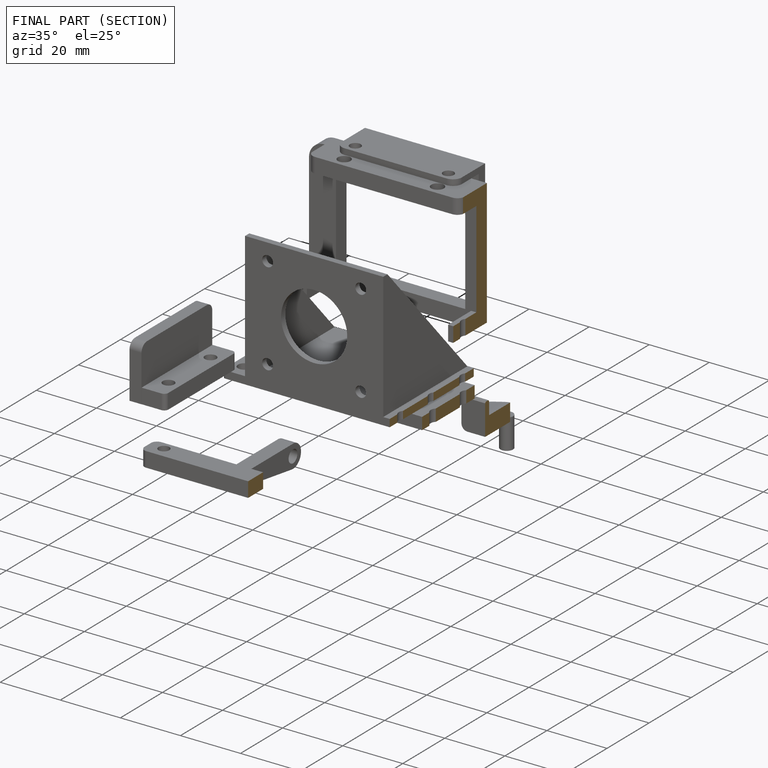
[diagram: finished part — half-section view (interior)]
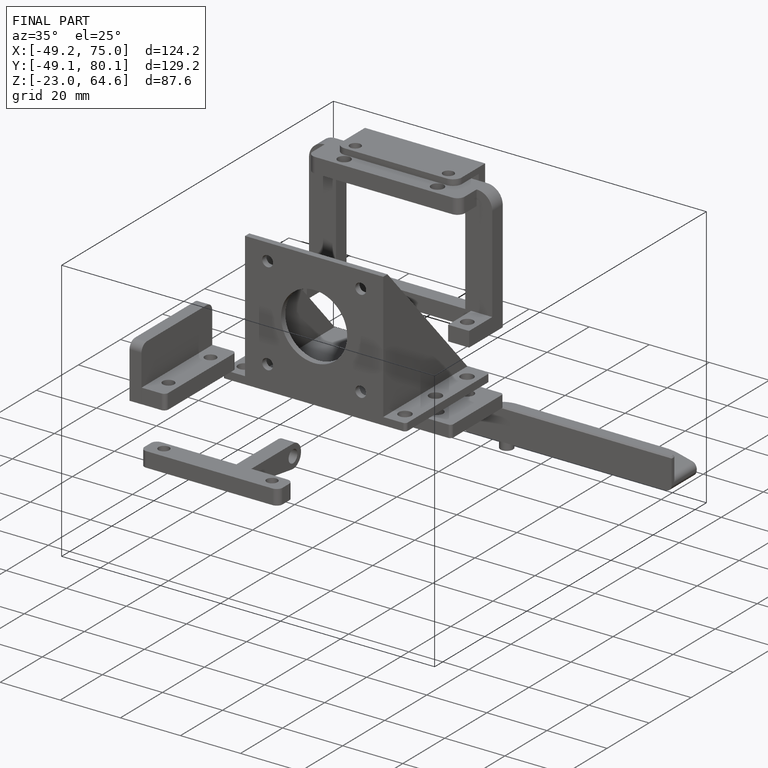
[diagram: finished part — iso view with bounding-box wireframe]
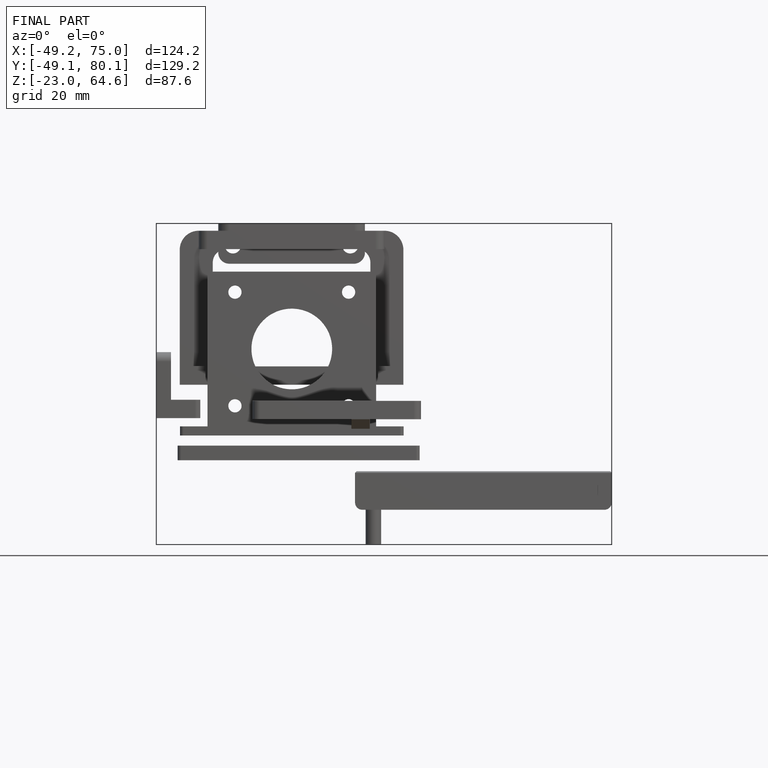
[diagram: finished part — front view with bounding-box wireframe]
